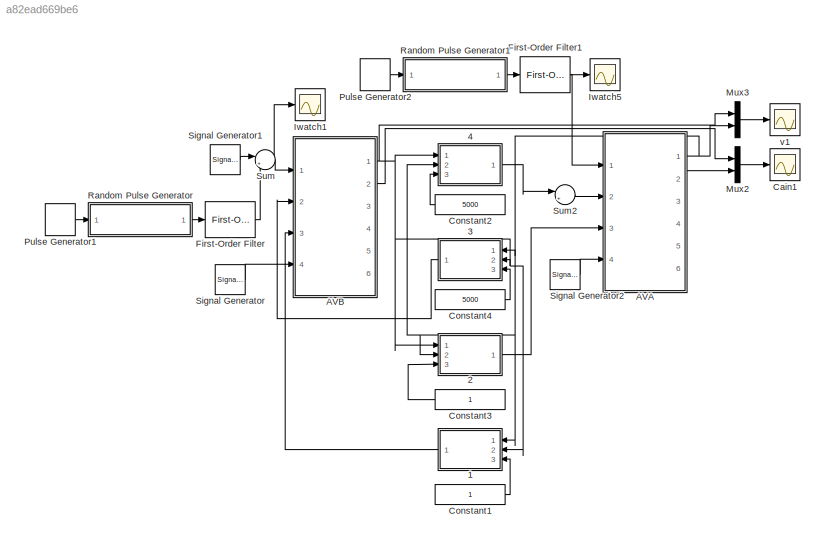
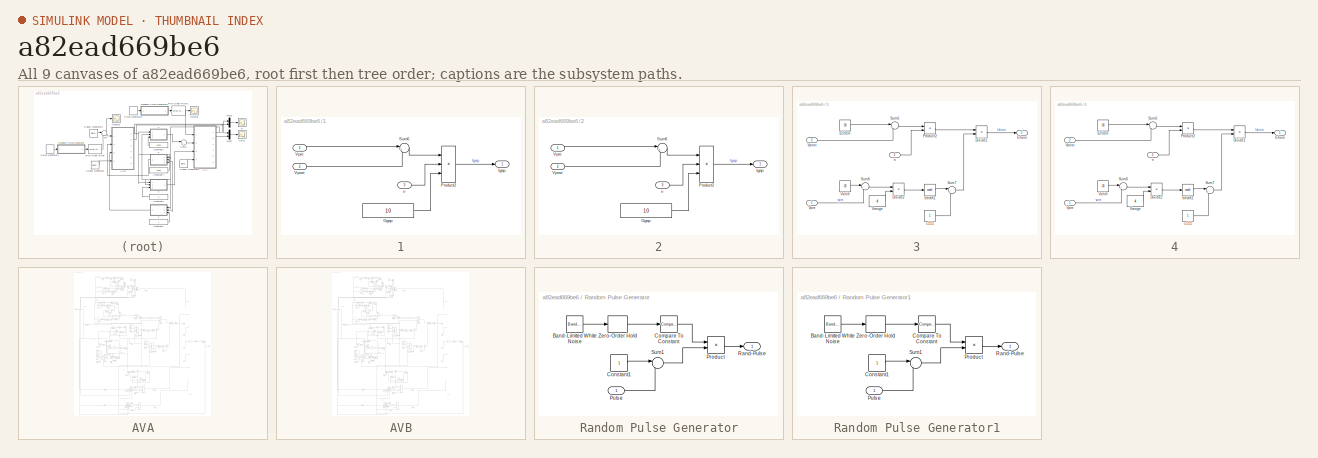
[diagram: thumbnail index - all 9 canvases of the model, root first then tree order]
MODEL slx_a82ead669be6
KIND model
CONFIG AbsTol = auto
CONFIG FixedStep = auto
CONFIG MaxStep = auto
CONFIG MinStep = auto
CONFIG RelTol = 1e-3
CONFIG SampleTimeConstraint = Unconstrained
CONFIG Solver = VariableStepAuto
CONFIG SolverMode = Auto
CONFIG SolverName = VariableStepAuto
CONFIG StartTime = 0.0
CONFIG StopTime = 500
BLOCK [SubSystem] 1
  Ports = [3, 1]
  RequestExecContextInheritance = off
  Variant = off
BLOCK [Constant] 1/Ggap
  Value = 10
BLOCK [Outport] 1/Igap
  IconDisplay = Port number
BLOCK [Product] 1/Product2
  InputSameDT = off
  Inputs = 3
  OutDataTypeStr = Inherit: Inherit via internal rule
  Ports = [3, 1]
  RndMeth = Floor
  SaturateOnIntegerOverflow = off
BLOCK [Sum] 1/Sum6
  IconShape = round
  InputSameDT = off
  Inputs = |+-
  OutDataTypeStr = Inherit: Inherit via internal rule
  Ports = [2, 1]
  SaturateOnIntegerOverflow = off
BLOCK [Inport] 1/Vpost
  IconDisplay = Port number
  Port = 2
BLOCK [Inport] 1/Vpre
  IconDisplay = Port number
BLOCK [Inport] 1/n
  IconDisplay = Port number
  Port = 3
BLOCK [SubSystem] 2
  Ports = [3, 1]
  RequestExecContextInheritance = off
  Variant = off
BLOCK [Constant] 2/Ggap
  Value = 10
BLOCK [Outport] 2/Igap
  IconDisplay = Port number
BLOCK [Product] 2/Product2
  InputSameDT = off
  Inputs = 3
  OutDataTypeStr = Inherit: Inherit via internal rule
  Ports = [3, 1]
  RndMeth = Floor
  SaturateOnIntegerOverflow = off
BLOCK [Sum] 2/Sum6
  IconShape = round
  InputSameDT = off
  Inputs = |+-
  OutDataTypeStr = Inherit: Inherit via internal rule
  Ports = [2, 1]
  SaturateOnIntegerOverflow = off
BLOCK [Inport] 2/Vpost
  IconDisplay = Port number
  Port = 2
BLOCK [Inport] 2/Vpre
  IconDisplay = Port number
BLOCK [Inport] 2/n
  IconDisplay = Port number
  Port = 3
BLOCK [SubSystem] 3
  Ports = [3, 1]
  RequestExecContextInheritance = off
  Variant = off
BLOCK [Product] 3/Divide1
  InputSameDT = off
  Inputs = */
  OutDataTypeStr = Inherit: Inherit via internal rule
  Ports = [2, 1]
  RndMeth = Floor
  SaturateOnIntegerOverflow = off
BLOCK [Product] 3/Divide2
  InputSameDT = off
  Inputs = */
  OutDataTypeStr = Inherit: Inherit via internal rule
  Ports = [2, 1]
  RndMeth = Floor
  SaturateOnIntegerOverflow = off
BLOCK [Constant] 3/Echem
  Value = -90
BLOCK [Outport] 3/Ichem
  IconDisplay = Port number
BLOCK [Product] 3/Product2
  InputSameDT = off
  OutDataTypeStr = Inherit: Inherit via internal rule
  Ports = [2, 1]
  RndMeth = Floor
  SaturateOnIntegerOverflow = off
BLOCK [Sum] 3/Sum6
  IconShape = round
  InputSameDT = off
  Inputs = |+-
  OutDataTypeStr = Inherit: Inherit via internal rule
  Ports = [2, 1]
  SaturateOnIntegerOverflow = off
BLOCK [Sum] 3/Sum7
  IconShape = round
  InputSameDT = off
  Inputs = |++
  OutDataTypeStr = Inherit: Inherit via internal rule
  Ports = [2, 1]
  SaturateOnIntegerOverflow = off
BLOCK [Sum] 3/Sum8
  IconShape = round
  InputSameDT = off
  Inputs = |+-
  OutDataTypeStr = Inherit: Inherit via internal rule
  Ports = [2, 1]
  SaturateOnIntegerOverflow = off
BLOCK [Inport] 3/Vpost
  IconDisplay = Port number
  Port = 2
BLOCK [Inport] 3/Vpre
  IconDisplay = Port number
BLOCK [Constant] 3/Vrange
  Value = 4
BLOCK [Constant] 3/Vshift
  Value = -30
BLOCK [Math] 3/betaK1
  Ports = [1, 1]
BLOCK [Constant] 3/c111
BLOCK [Inport] 3/n
  IconDisplay = Port number
  Port = 3
BLOCK [SubSystem] 4
  Ports = [3, 1]
  RequestExecContextInheritance = off
  Variant = off
BLOCK [Product] 4/Divide1
  InputSameDT = off
  Inputs = */
  OutDataTypeStr = Inherit: Inherit via internal rule
  Ports = [2, 1]
  RndMeth = Floor
  SaturateOnIntegerOverflow = off
BLOCK [Product] 4/Divide2
  InputSameDT = off
  Inputs = */
  OutDataTypeStr = Inherit: Inherit via internal rule
  Ports = [2, 1]
  RndMeth = Floor
  SaturateOnIntegerOverflow = off
BLOCK [Constant] 4/Echem
  Value = -90
BLOCK [Outport] 4/Ichem
  IconDisplay = Port number
BLOCK [Product] 4/Product2
  InputSameDT = off
  OutDataTypeStr = Inherit: Inherit via internal rule
  Ports = [2, 1]
  RndMeth = Floor
  SaturateOnIntegerOverflow = off
BLOCK [Sum] 4/Sum6
  IconShape = round
  InputSameDT = off
  Inputs = |+-
  OutDataTypeStr = Inherit: Inherit via internal rule
  Ports = [2, 1]
  SaturateOnIntegerOverflow = off
BLOCK [Sum] 4/Sum7
  IconShape = round
  InputSameDT = off
  Inputs = |++
  OutDataTypeStr = Inherit: Inherit via internal rule
  Ports = [2, 1]
  SaturateOnIntegerOverflow = off
BLOCK [Sum] 4/Sum8
  IconShape = round
  InputSameDT = off
  Inputs = |+-
  OutDataTypeStr = Inherit: Inherit via internal rule
  Ports = [2, 1]
  SaturateOnIntegerOverflow = off
BLOCK [Inport] 4/Vpost
  IconDisplay = Port number
  Port = 2
BLOCK [Inport] 4/Vpre
  IconDisplay = Port number
BLOCK [Constant] 4/Vrange
  Value = 4
BLOCK [Constant] 4/Vshift
  Value = -30
BLOCK [Math] 4/betaK1
  Ports = [1, 1]
BLOCK [Constant] 4/c111
BLOCK [Inport] 4/n
  IconDisplay = Port number
  Port = 3
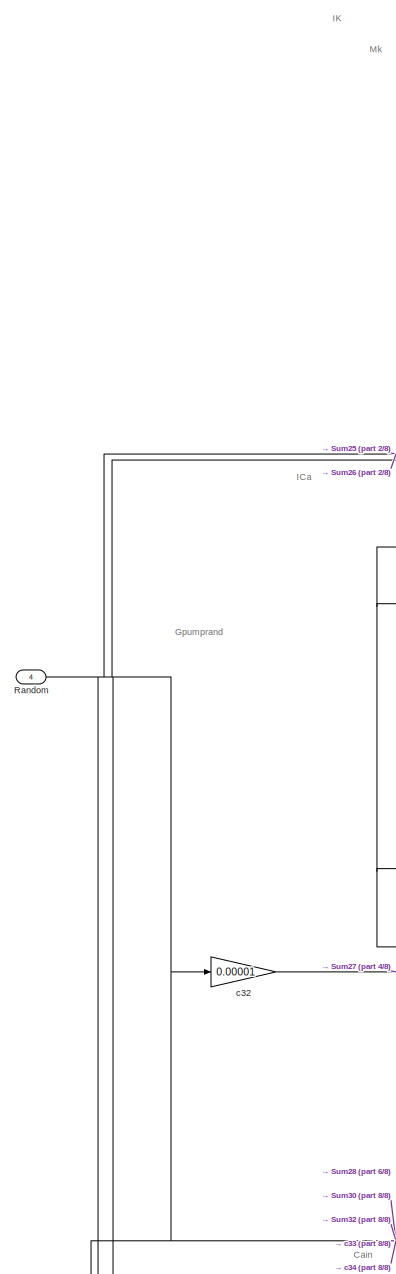
[diagram: AVA - part 1/8, top left region]
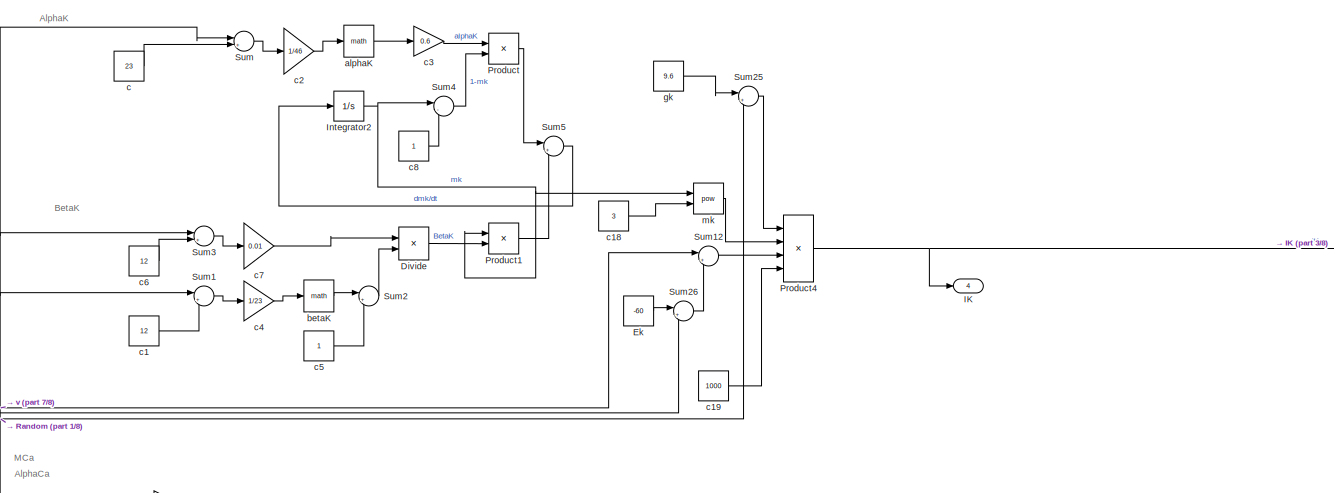
[diagram: AVA - part 2/8, top center region]
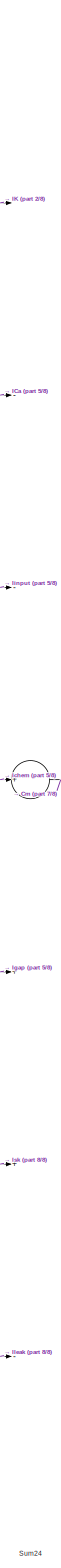
[diagram: AVA - part 3/8, right side, full height]
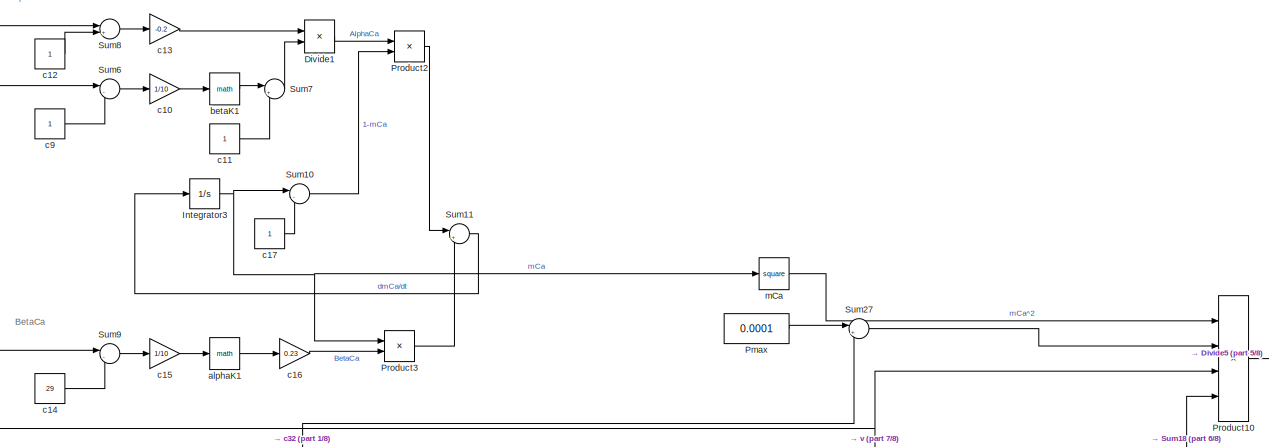
[diagram: AVA - part 4/8, top center region]
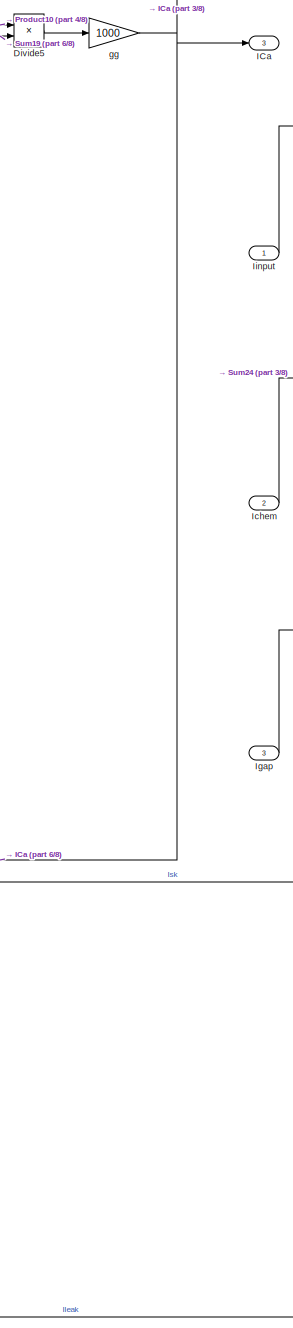
[diagram: AVA - part 5/8, middle right region]
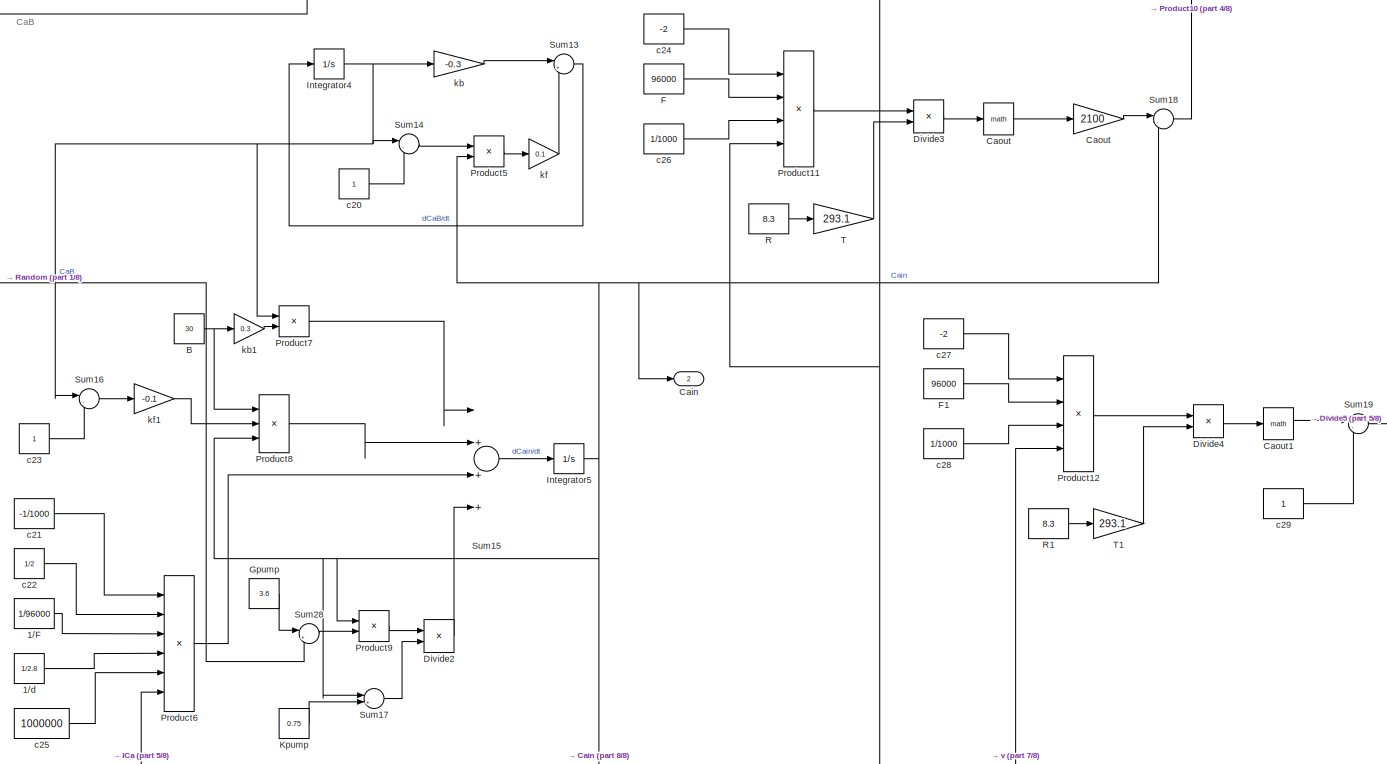
[diagram: AVA - part 6/8, central region]
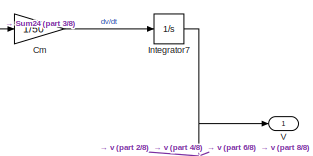
[diagram: AVA - part 7/8, middle right region]
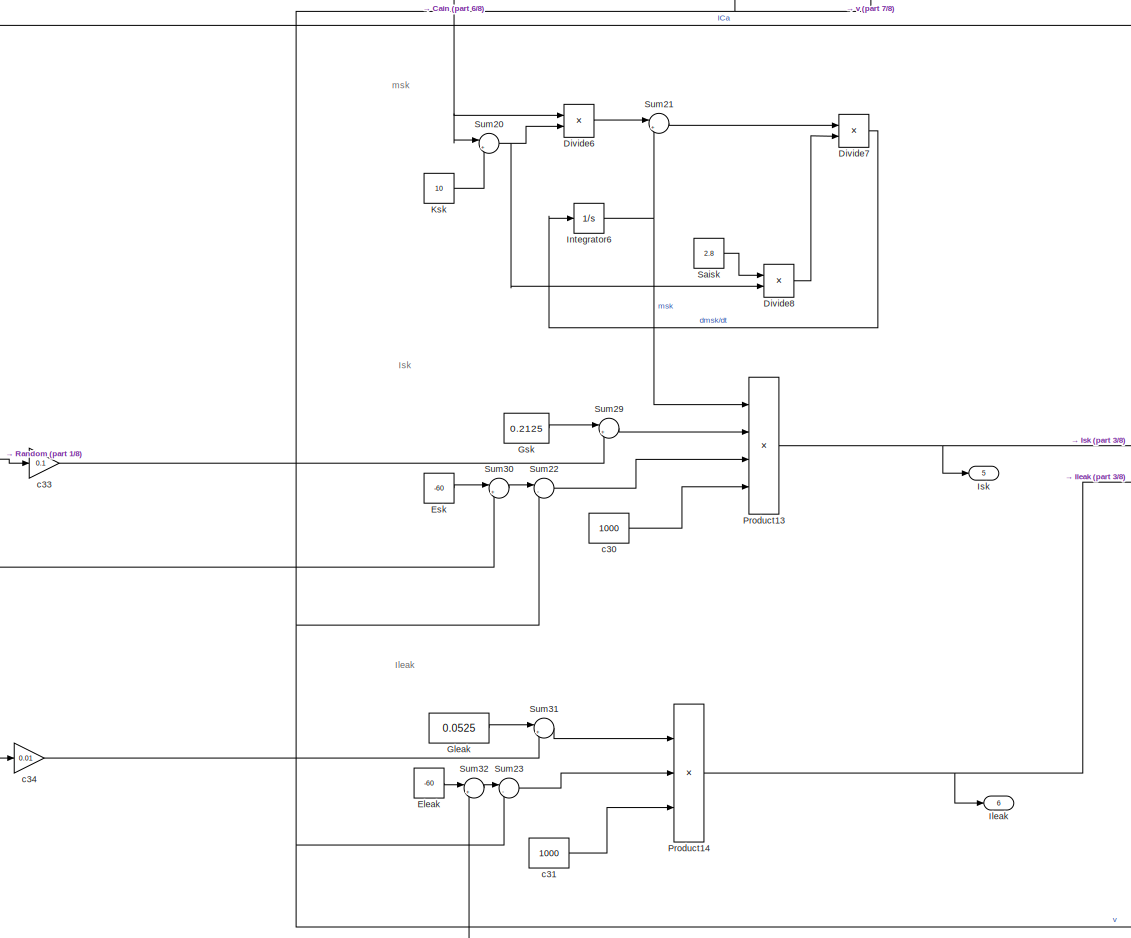
[diagram: AVA - part 8/8, bottom center region]
BLOCK [SubSystem] AVA
  Ports = [4, 6]
  RequestExecContextInheritance = off
  Variant = off
BLOCK [Constant] AVA/1//F
  Value = 1/96000
BLOCK [Constant] AVA/1//d
  Value = 1/2.8
BLOCK [Constant] AVA/B
  Value = 30
BLOCK [Outport] AVA/Cain 
  IconDisplay = Port number
  Port = 2
BLOCK [Math] AVA/Caout
  Ports = [1, 1]
BLOCK [Gain] AVA/Caout 
  Gain = 2100
  OutDataTypeStr = Inherit: Inherit via internal rule
  ParamDataTypeStr = Inherit: Inherit via internal rule
  SaturateOnIntegerOverflow = off
BLOCK [Math] AVA/Caout1
  Ports = [1, 1]
BLOCK [Gain] AVA/Cm 
  Gain = 1/50
  OutDataTypeStr = Inherit: Inherit via internal rule
  ParamDataTypeStr = Inherit: Inherit via internal rule
  SaturateOnIntegerOverflow = off
BLOCK [Product] AVA/Divide
  InputSameDT = off
  Inputs = */
  OutDataTypeStr = Inherit: Inherit via internal rule
  Ports = [2, 1]
  RndMeth = Floor
  SaturateOnIntegerOverflow = off
BLOCK [Product] AVA/Divide1
  InputSameDT = off
  Inputs = */
  OutDataTypeStr = Inherit: Inherit via internal rule
  Ports = [2, 1]
  RndMeth = Floor
  SaturateOnIntegerOverflow = off
BLOCK [Product] AVA/Divide2
  InputSameDT = off
  Inputs = */
  OutDataTypeStr = Inherit: Inherit via internal rule
  Ports = [2, 1]
  RndMeth = Floor
  SaturateOnIntegerOverflow = off
BLOCK [Product] AVA/Divide3
  InputSameDT = off
  Inputs = */
  OutDataTypeStr = Inherit: Inherit via internal rule
  Ports = [2, 1]
  RndMeth = Floor
  SaturateOnIntegerOverflow = off
BLOCK [Product] AVA/Divide4
  InputSameDT = off
  Inputs = */
  OutDataTypeStr = Inherit: Inherit via internal rule
  Ports = [2, 1]
  RndMeth = Floor
  SaturateOnIntegerOverflow = off
BLOCK [Product] AVA/Divide5
  InputSameDT = off
  Inputs = */
  OutDataTypeStr = Inherit: Inherit via internal rule
  Ports = [2, 1]
  RndMeth = Floor
  SaturateOnIntegerOverflow = off
BLOCK [Product] AVA/Divide6
  InputSameDT = off
  Inputs = */
  OutDataTypeStr = Inherit: Inherit via internal rule
  Ports = [2, 1]
  RndMeth = Floor
  SaturateOnIntegerOverflow = off
BLOCK [Product] AVA/Divide7
  InputSameDT = off
  Inputs = */
  OutDataTypeStr = Inherit: Inherit via internal rule
  Ports = [2, 1]
  RndMeth = Floor
  SaturateOnIntegerOverflow = off
BLOCK [Product] AVA/Divide8
  InputSameDT = off
  Inputs = */
  OutDataTypeStr = Inherit: Inherit via internal rule
  Ports = [2, 1]
  RndMeth = Floor
  SaturateOnIntegerOverflow = off
BLOCK [Constant] AVA/Ek 
  Value = -60
BLOCK [Constant] AVA/Eleak
  Value = -60
BLOCK [Constant] AVA/Esk
  Value = -60
BLOCK [Constant] AVA/F
  Value = 96000
BLOCK [Constant] AVA/F1
  Value = 96000
BLOCK [Constant] AVA/Gleak
  Value = 0.0525
BLOCK [Constant] AVA/Gpump
  Value = 3.6
BLOCK [Constant] AVA/Gsk
  Value = 0.2125
BLOCK [Outport] AVA/ICa
  IconDisplay = Port number
  Port = 3
BLOCK [Outport] AVA/IK
  IconDisplay = Port number
  Port = 4
BLOCK [Inport] AVA/Ichem
  IconDisplay = Port number
  Port = 2
BLOCK [Inport] AVA/Igap
  IconDisplay = Port number
  Port = 3
BLOCK [Inport] AVA/Iinput
  IconDisplay = Port number
BLOCK [Outport] AVA/Ileak
  IconDisplay = Port number
  Port = 6
BLOCK [Integrator] AVA/Integrator2
  Ports = [1, 1]
BLOCK [Integrator] AVA/Integrator3
  InitialCondition = 0.001
  Ports = [1, 1]
BLOCK [Integrator] AVA/Integrator4
  Ports = [1, 1]
BLOCK [Integrator] AVA/Integrator5
  Ports = [1, 1]
BLOCK [Integrator] AVA/Integrator6
  InitialCondition = 1
  Ports = [1, 1]
BLOCK [Integrator] AVA/Integrator7
  InitialCondition = -60
  Ports = [1, 1]
BLOCK [Outport] AVA/Isk
  IconDisplay = Port number
  Port = 5
BLOCK [Constant] AVA/Kpump
  Value = 0.75
BLOCK [Constant] AVA/Ksk
  Value = 10
BLOCK [Constant] AVA/Pmax
  Value = 0.0001
BLOCK [Product] AVA/Product
  InputSameDT = off
  OutDataTypeStr = Inherit: Inherit via internal rule
  Ports = [2, 1]
  RndMeth = Floor
  SaturateOnIntegerOverflow = off
BLOCK [Product] AVA/Product1
  InputSameDT = off
  OutDataTypeStr = Inherit: Inherit via internal rule
  Ports = [2, 1]
  RndMeth = Floor
  SaturateOnIntegerOverflow = off
BLOCK [Product] AVA/Product10
  InputSameDT = off
  Inputs = 4
  OutDataTypeStr = Inherit: Inherit via internal rule
  Ports = [4, 1]
  RndMeth = Floor
  SaturateOnIntegerOverflow = off
BLOCK [Product] AVA/Product11
  InputSameDT = off
  Inputs = 4
  OutDataTypeStr = Inherit: Inherit via internal rule
  Ports = [4, 1]
  RndMeth = Floor
  SaturateOnIntegerOverflow = off
BLOCK [Product] AVA/Product12
  InputSameDT = off
  Inputs = 4
  OutDataTypeStr = Inherit: Inherit via internal rule
  Ports = [4, 1]
  RndMeth = Floor
  SaturateOnIntegerOverflow = off
BLOCK [Product] AVA/Product13
  InputSameDT = off
  Inputs = 4
  OutDataTypeStr = Inherit: Inherit via internal rule
  Ports = [4, 1]
  RndMeth = Floor
  SaturateOnIntegerOverflow = off
BLOCK [Product] AVA/Product14
  InputSameDT = off
  Inputs = 3
  OutDataTypeStr = Inherit: Inherit via internal rule
  Ports = [3, 1]
  RndMeth = Floor
  SaturateOnIntegerOverflow = off
BLOCK [Product] AVA/Product2
  InputSameDT = off
  OutDataTypeStr = Inherit: Inherit via internal rule
  Ports = [2, 1]
  RndMeth = Floor
  SaturateOnIntegerOverflow = off
BLOCK [Product] AVA/Product3
  InputSameDT = off
  OutDataTypeStr = Inherit: Inherit via internal rule
  Ports = [2, 1]
  RndMeth = Floor
  SaturateOnIntegerOverflow = off
BLOCK [Product] AVA/Product4
  InputSameDT = off
  Inputs = 4
  OutDataTypeStr = Inherit: Inherit via internal rule
  Ports = [4, 1]
  RndMeth = Floor
  SaturateOnIntegerOverflow = off
BLOCK [Product] AVA/Product5
  InputSameDT = off
  OutDataTypeStr = Inherit: Inherit via internal rule
  Ports = [2, 1]
  RndMeth = Floor
  SaturateOnIntegerOverflow = off
BLOCK [Product] AVA/Product6
  InputSameDT = off
  Inputs = 6
  OutDataTypeStr = Inherit: Inherit via internal rule
  Ports = [6, 1]
  RndMeth = Floor
  SaturateOnIntegerOverflow = off
BLOCK [Product] AVA/Product7
  InputSameDT = off
  OutDataTypeStr = Inherit: Inherit via internal rule
  Ports = [2, 1]
  RndMeth = Floor
  SaturateOnIntegerOverflow = off
BLOCK [Product] AVA/Product8
  InputSameDT = off
  Inputs = 3
  OutDataTypeStr = Inherit: Inherit via internal rule
  Ports = [3, 1]
  RndMeth = Floor
  SaturateOnIntegerOverflow = off
BLOCK [Product] AVA/Product9
  InputSameDT = off
  OutDataTypeStr = Inherit: Inherit via internal rule
  Ports = [2, 1]
  RndMeth = Floor
  SaturateOnIntegerOverflow = off
BLOCK [Constant] AVA/R
  Value = 8.3
BLOCK [Constant] AVA/R1
  Value = 8.3
BLOCK [Inport] AVA/Random
  IconDisplay = Port number
  Port = 4
BLOCK [Constant] AVA/Saisk
  Value = 2.8
BLOCK [Sum] AVA/Sum
  IconShape = round
  InputSameDT = off
  Inputs = |+-
  OutDataTypeStr = Inherit: Inherit via internal rule
  Ports = [2, 1]
  SaturateOnIntegerOverflow = off
BLOCK [Sum] AVA/Sum1
  IconShape = round
  InputSameDT = off
  Inputs = |++
  OutDataTypeStr = Inherit: Inherit via internal rule
  Ports = [2, 1]
  SaturateOnIntegerOverflow = off
BLOCK [Sum] AVA/Sum10
  IconShape = round
  InputSameDT = off
  Inputs = |-+
  OutDataTypeStr = Inherit: Inherit via internal rule
  Ports = [2, 1]
  SaturateOnIntegerOverflow = off
BLOCK [Sum] AVA/Sum11
  IconShape = round
  InputSameDT = off
  Inputs = |+-
  OutDataTypeStr = Inherit: Inherit via internal rule
  Ports = [2, 1]
  SaturateOnIntegerOverflow = off
BLOCK [Sum] AVA/Sum12
  IconShape = round
  InputSameDT = off
  Inputs = |+-
  OutDataTypeStr = Inherit: Inherit via internal rule
  Ports = [2, 1]
  SaturateOnIntegerOverflow = off
BLOCK [Sum] AVA/Sum13
  IconShape = round
  InputSameDT = off
  Inputs = |++
  OutDataTypeStr = Inherit: Inherit via internal rule
  Ports = [2, 1]
  SaturateOnIntegerOverflow = off
BLOCK [Sum] AVA/Sum14
  IconShape = round
  InputSameDT = off
  Inputs = |-+
  OutDataTypeStr = Inherit: Inherit via internal rule
  Ports = [2, 1]
  SaturateOnIntegerOverflow = off
BLOCK [Sum] AVA/Sum15
  InputSameDT = off
  Inputs = |+++-
  OutDataTypeStr = Inherit: Inherit via internal rule
  Ports = [4, 1]
  SaturateOnIntegerOverflow = off
BLOCK [Sum] AVA/Sum16
  IconShape = round
  InputSameDT = off
  Inputs = |-+
  OutDataTypeStr = Inherit: Inherit via internal rule
  Ports = [2, 1]
  SaturateOnIntegerOverflow = off
BLOCK [Sum] AVA/Sum17
  IconShape = round
  InputSameDT = off
  Inputs = |++
  OutDataTypeStr = Inherit: Inherit via internal rule
  Ports = [2, 1]
  SaturateOnIntegerOverflow = off
BLOCK [Sum] AVA/Sum18
  IconShape = round
  InputSameDT = off
  Inputs = |-+
  OutDataTypeStr = Inherit: Inherit via internal rule
  Ports = [2, 1]
  SaturateOnIntegerOverflow = off
BLOCK [Sum] AVA/Sum19
  IconShape = round
  InputSameDT = off
  Inputs = |-+
  OutDataTypeStr = Inherit: Inherit via internal rule
  Ports = [2, 1]
  SaturateOnIntegerOverflow = off
BLOCK [Sum] AVA/Sum2
  IconShape = round
  InputSameDT = off
  Inputs = |+-
  OutDataTypeStr = Inherit: Inherit via internal rule
  Ports = [2, 1]
  SaturateOnIntegerOverflow = off
BLOCK [Sum] AVA/Sum20
  IconShape = round
  InputSameDT = off
  Inputs = |++
  OutDataTypeStr = Inherit: Inherit via internal rule
  Ports = [2, 1]
  SaturateOnIntegerOverflow = off
BLOCK [Sum] AVA/Sum21
  IconShape = round
  InputSameDT = off
  Inputs = |+-
  OutDataTypeStr = Inherit: Inherit via internal rule
  Ports = [2, 1]
  SaturateOnIntegerOverflow = off
BLOCK [Sum] AVA/Sum22
  IconShape = round
  InputSameDT = off
  Inputs = |-+
  OutDataTypeStr = Inherit: Inherit via internal rule
  Ports = [2, 1]
  SaturateOnIntegerOverflow = off
BLOCK [Sum] AVA/Sum23
  IconShape = round
  InputSameDT = off
  Inputs = |-+
  OutDataTypeStr = Inherit: Inherit via internal rule
  Ports = [2, 1]
  SaturateOnIntegerOverflow = off
BLOCK [Sum] AVA/Sum24
  InputSameDT = off
  Inputs = |--+++--
  OutDataTypeStr = Inherit: Inherit via internal rule
  Ports = [7, 1]
  SaturateOnIntegerOverflow = off
BLOCK [Sum] AVA/Sum25
  IconShape = round
  InputSameDT = off
  Inputs = |++
  OutDataTypeStr = Inherit: Inherit via internal rule
  Ports = [2, 1]
  SaturateOnIntegerOverflow = off
BLOCK [Sum] AVA/Sum26
  IconShape = round
  InputSameDT = off
  Inputs = |++
  OutDataTypeStr = Inherit: Inherit via internal rule
  Ports = [2, 1]
  SaturateOnIntegerOverflow = off
BLOCK [Sum] AVA/Sum27
  IconShape = round
  InputSameDT = off
  Inputs = |++
  OutDataTypeStr = Inherit: Inherit via internal rule
  Ports = [2, 1]
  SaturateOnIntegerOverflow = off
BLOCK [Sum] AVA/Sum28
  IconShape = round
  InputSameDT = off
  Inputs = |++
  OutDataTypeStr = Inherit: Inherit via internal rule
  Ports = [2, 1]
  SaturateOnIntegerOverflow = off
BLOCK [Sum] AVA/Sum29
  IconShape = round
  InputSameDT = off
  Inputs = |++
  OutDataTypeStr = Inherit: Inherit via internal rule
  Ports = [2, 1]
  SaturateOnIntegerOverflow = off
BLOCK [Sum] AVA/Sum3
  IconShape = round
  InputSameDT = off
  Inputs = |++
  OutDataTypeStr = Inherit: Inherit via internal rule
  Ports = [2, 1]
  SaturateOnIntegerOverflow = off
BLOCK [Sum] AVA/Sum30
  IconShape = round
  InputSameDT = off
  Inputs = |++
  OutDataTypeStr = Inherit: Inherit via internal rule
  Ports = [2, 1]
  SaturateOnIntegerOverflow = off
BLOCK [Sum] AVA/Sum31
  IconShape = round
  InputSameDT = off
  Inputs = |++
  OutDataTypeStr = Inherit: Inherit via internal rule
  Ports = [2, 1]
  SaturateOnIntegerOverflow = off
BLOCK [Sum] AVA/Sum32
  IconShape = round
  InputSameDT = off
  Inputs = |++
  OutDataTypeStr = Inherit: Inherit via internal rule
  Ports = [2, 1]
  SaturateOnIntegerOverflow = off
BLOCK [Sum] AVA/Sum4
  IconShape = round
  InputSameDT = off
  Inputs = |-+
  OutDataTypeStr = Inherit: Inherit via internal rule
  Ports = [2, 1]
  SaturateOnIntegerOverflow = off
BLOCK [Sum] AVA/Sum5
  IconShape = round
  InputSameDT = off
  Inputs = |+-
  OutDataTypeStr = Inherit: Inherit via internal rule
  Ports = [2, 1]
  SaturateOnIntegerOverflow = off
BLOCK [Sum] AVA/Sum6
  IconShape = round
  InputSameDT = off
  Inputs = |--
  OutDataTypeStr = Inherit: Inherit via internal rule
  Ports = [2, 1]
  SaturateOnIntegerOverflow = off
BLOCK [Sum] AVA/Sum7
  IconShape = round
  InputSameDT = off
  Inputs = |+-
  OutDataTypeStr = Inherit: Inherit via internal rule
  Ports = [2, 1]
  SaturateOnIntegerOverflow = off
BLOCK [Sum] AVA/Sum8
  IconShape = round
  InputSameDT = off
  Inputs = |++
  OutDataTypeStr = Inherit: Inherit via internal rule
  Ports = [2, 1]
  SaturateOnIntegerOverflow = off
BLOCK [Sum] AVA/Sum9
  IconShape = round
  InputSameDT = off
  Inputs = |--
  OutDataTypeStr = Inherit: Inherit via internal rule
  Ports = [2, 1]
  SaturateOnIntegerOverflow = off
BLOCK [Gain] AVA/T
  Gain = 293.1
  OutDataTypeStr = Inherit: Inherit via internal rule
  ParamDataTypeStr = Inherit: Inherit via internal rule
  SaturateOnIntegerOverflow = off
BLOCK [Gain] AVA/T1
  Gain = 293.1
  OutDataTypeStr = Inherit: Inherit via internal rule
  ParamDataTypeStr = Inherit: Inherit via internal rule
  SaturateOnIntegerOverflow = off
BLOCK [Outport] AVA/V
  IconDisplay = Port number
BLOCK [Math] AVA/alphaK
  Ports = [1, 1]
BLOCK [Math] AVA/alphaK1
  Ports = [1, 1]
BLOCK [Math] AVA/betaK
  Ports = [1, 1]
BLOCK [Math] AVA/betaK1
  Ports = [1, 1]
BLOCK [Constant] AVA/c
  Value = 23
BLOCK [Constant] AVA/c1
  Value = 12
BLOCK [Gain] AVA/c10
  Gain = 1/10
  OutDataTypeStr = Inherit: Inherit via internal rule
  ParamDataTypeStr = Inherit: Inherit via internal rule
  SaturateOnIntegerOverflow = off
BLOCK [Constant] AVA/c11
BLOCK [Constant] AVA/c12
BLOCK [Gain] AVA/c13
  Gain = -0.2
  OutDataTypeStr = Inherit: Inherit via internal rule
  ParamDataTypeStr = Inherit: Inherit via internal rule
  SaturateOnIntegerOverflow = off
BLOCK [Constant] AVA/c14
  Value = 29
BLOCK [Gain] AVA/c15
  Gain = 1/10
  OutDataTypeStr = Inherit: Inherit via internal rule
  ParamDataTypeStr = Inherit: Inherit via internal rule
  SaturateOnIntegerOverflow = off
BLOCK [Gain] AVA/c16
  Gain = 0.23
  OutDataTypeStr = Inherit: Inherit via internal rule
  ParamDataTypeStr = Inherit: Inherit via internal rule
  SaturateOnIntegerOverflow = off
BLOCK [Constant] AVA/c17
BLOCK [Constant] AVA/c18
  Value = 3
BLOCK [Constant] AVA/c19
  Value = 1000
BLOCK [Gain] AVA/c2
  Gain = 1/46
  OutDataTypeStr = Inherit: Inherit via internal rule
  ParamDataTypeStr = Inherit: Inherit via internal rule
  SaturateOnIntegerOverflow = off
BLOCK [Constant] AVA/c20
BLOCK [Constant] AVA/c21
  Value = -1/1000
BLOCK [Constant] AVA/c22
  Value = 1/2
BLOCK [Constant] AVA/c23
BLOCK [Constant] AVA/c24
  Value = -2
BLOCK [Constant] AVA/c25
  Value = 1000000
BLOCK [Constant] AVA/c26
  Value = 1/1000
BLOCK [Constant] AVA/c27
  Value = -2
BLOCK [Constant] AVA/c28
  Value = 1/1000
BLOCK [Constant] AVA/c29
BLOCK [Gain] AVA/c3
  Gain = 0.6
  OutDataTypeStr = Inherit: Inherit via internal rule
  ParamDataTypeStr = Inherit: Inherit via internal rule
  SaturateOnIntegerOverflow = off
BLOCK [Constant] AVA/c30
  Value = 1000
BLOCK [Constant] AVA/c31
  Value = 1000
BLOCK [Gain] AVA/c32
  Gain = 0.00001
  OutDataTypeStr = Inherit: Inherit via internal rule
  ParamDataTypeStr = Inherit: Inherit via internal rule
  SaturateOnIntegerOverflow = off
BLOCK [Gain] AVA/c33
  Gain = 0.1
  OutDataTypeStr = Inherit: Inherit via internal rule
  ParamDataTypeStr = Inherit: Inherit via internal rule
  SaturateOnIntegerOverflow = off
BLOCK [Gain] AVA/c34
  Gain = 0.01
  OutDataTypeStr = Inherit: Inherit via internal rule
  ParamDataTypeStr = Inherit: Inherit via internal rule
  SaturateOnIntegerOverflow = off
BLOCK [Gain] AVA/c4
  Gain = 1/23
  OutDataTypeStr = Inherit: Inherit via internal rule
  ParamDataTypeStr = Inherit: Inherit via internal rule
  SaturateOnIntegerOverflow = off
BLOCK [Constant] AVA/c5
BLOCK [Constant] AVA/c6
  Value = 12
BLOCK [Gain] AVA/c7
  Gain = 0.01
  OutDataTypeStr = Inherit: Inherit via internal rule
  ParamDataTypeStr = Inherit: Inherit via internal rule
  SaturateOnIntegerOverflow = off
BLOCK [Constant] AVA/c8
BLOCK [Constant] AVA/c9
BLOCK [Gain] AVA/gg 
  Gain = 1000
  OutDataTypeStr = Inherit: Inherit via internal rule
  ParamDataTypeStr = Inherit: Inherit via internal rule
  SaturateOnIntegerOverflow = off
BLOCK [Constant] AVA/gk
  Value = 9.6
BLOCK [Gain] AVA/kb
  Gain = -0.3
  OutDataTypeStr = Inherit: Inherit via internal rule
  ParamDataTypeStr = Inherit: Inherit via internal rule
  SaturateOnIntegerOverflow = off
BLOCK [Gain] AVA/kb1
  Gain = 0.3
  OutDataTypeStr = Inherit: Inherit via internal rule
  ParamDataTypeStr = Inherit: Inherit via internal rule
  SaturateOnIntegerOverflow = off
BLOCK [Gain] AVA/kf
  Gain = 0.1
  OutDataTypeStr = Inherit: Inherit via internal rule
  ParamDataTypeStr = Inherit: Inherit via internal rule
  SaturateOnIntegerOverflow = off
BLOCK [Gain] AVA/kf1
  Gain = -0.1
  OutDataTypeStr = Inherit: Inherit via internal rule
  ParamDataTypeStr = Inherit: Inherit via internal rule
  SaturateOnIntegerOverflow = off
BLOCK [Math] AVA/mCa
  Operator = square
  Ports = [1, 1]
BLOCK [Math] AVA/mk
  Operator = pow
  Ports = [2, 1]
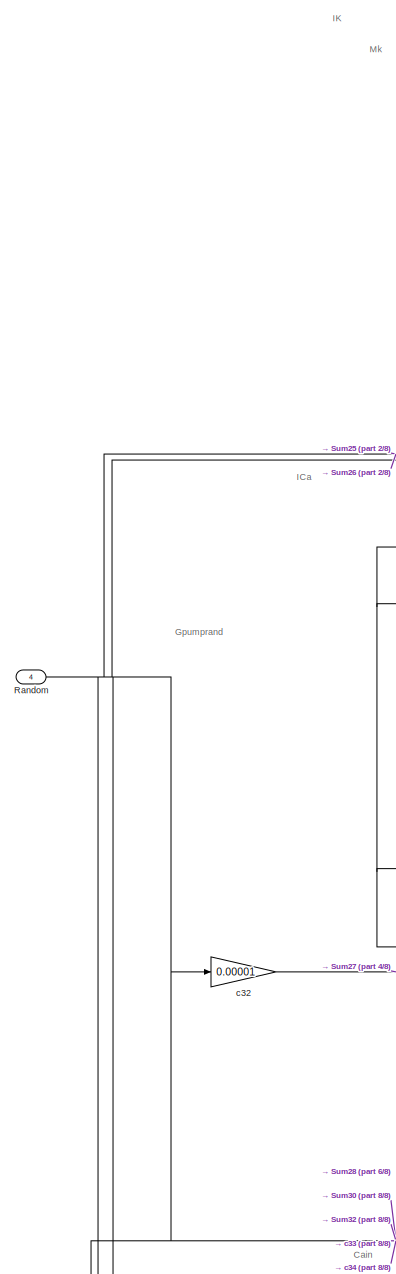
[diagram: AVB - part 1/8, top left region]
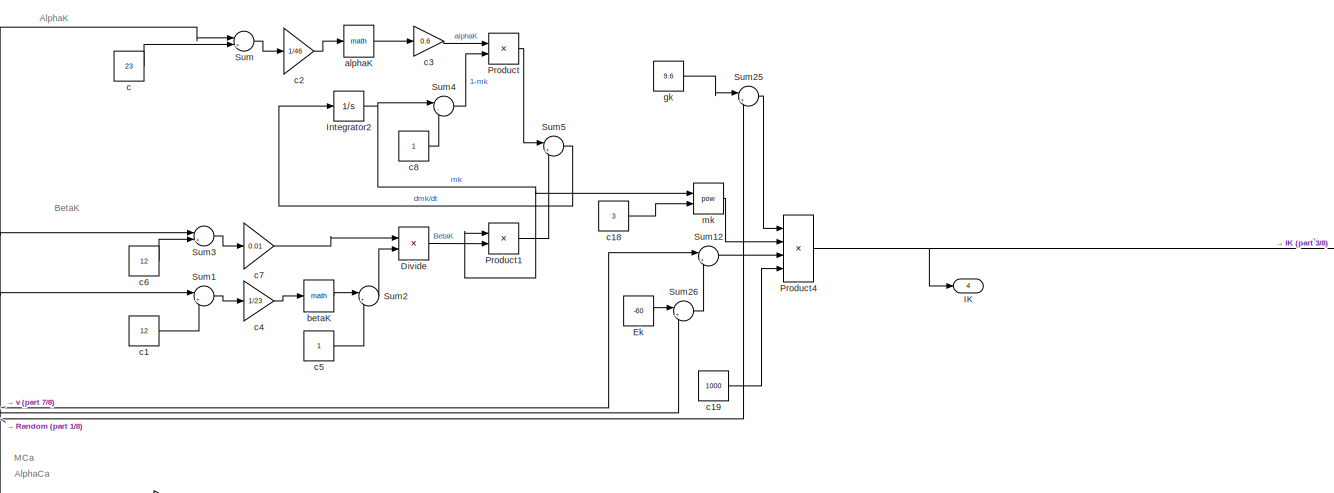
[diagram: AVB - part 2/8, top center region]
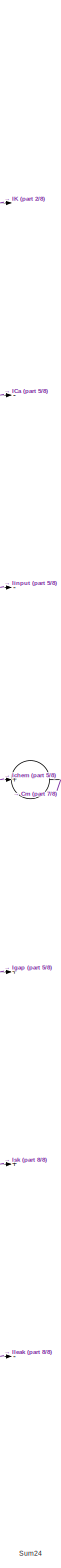
[diagram: AVB - part 3/8, right side, full height]
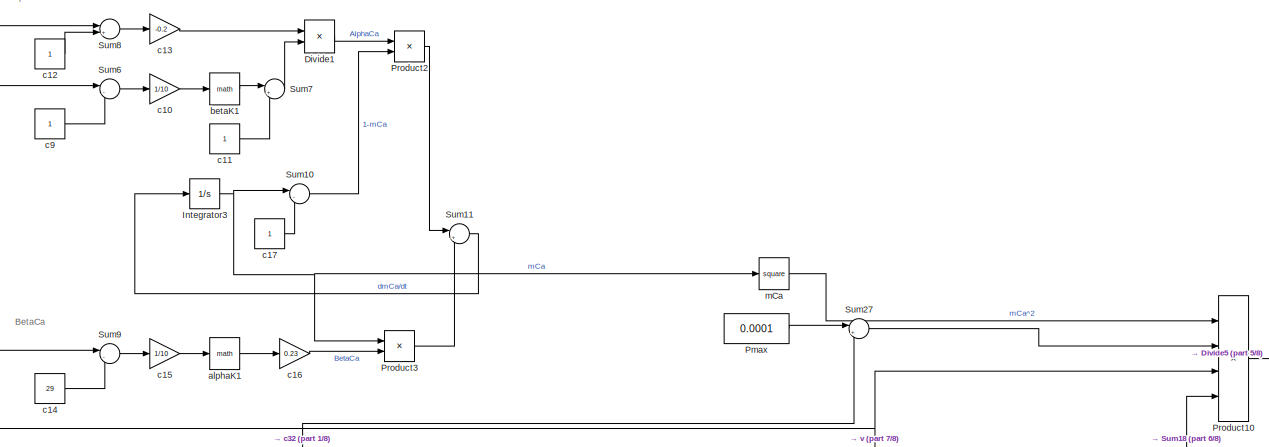
[diagram: AVB - part 4/8, top center region]
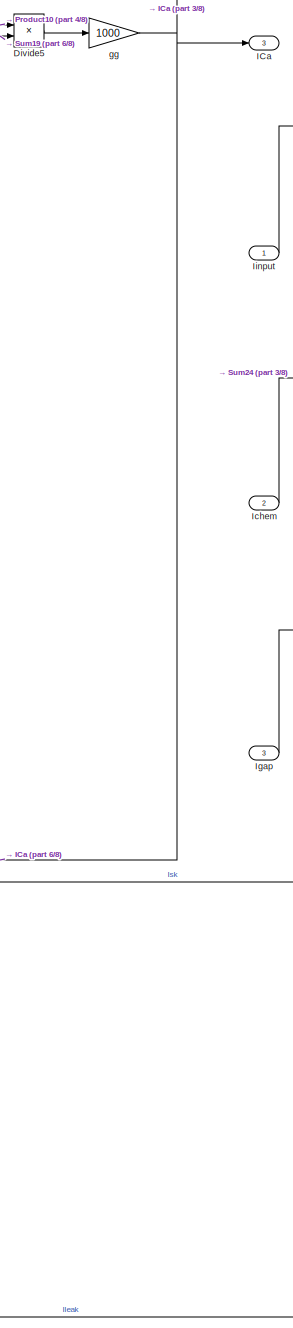
[diagram: AVB - part 5/8, middle right region]
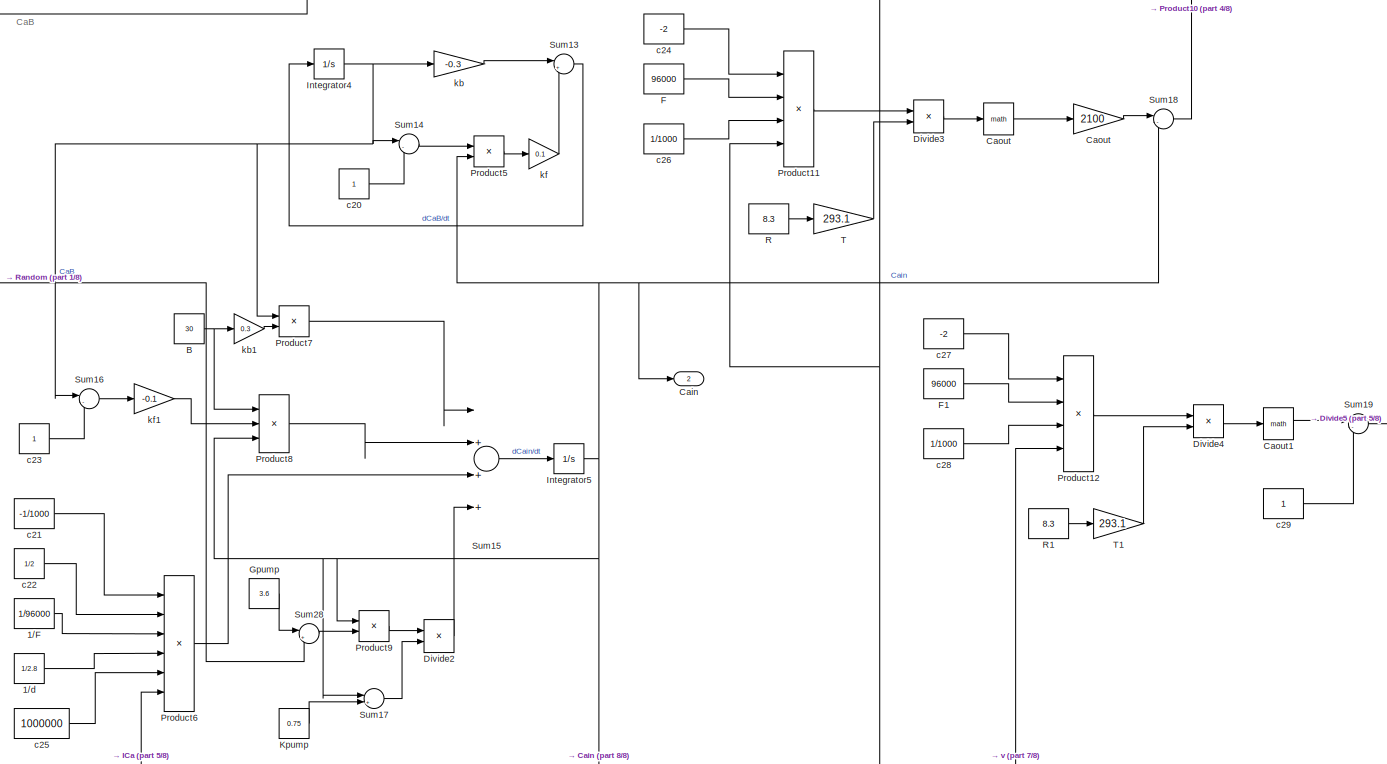
[diagram: AVB - part 6/8, central region]
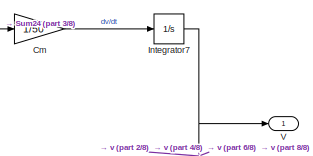
[diagram: AVB - part 7/8, middle right region]
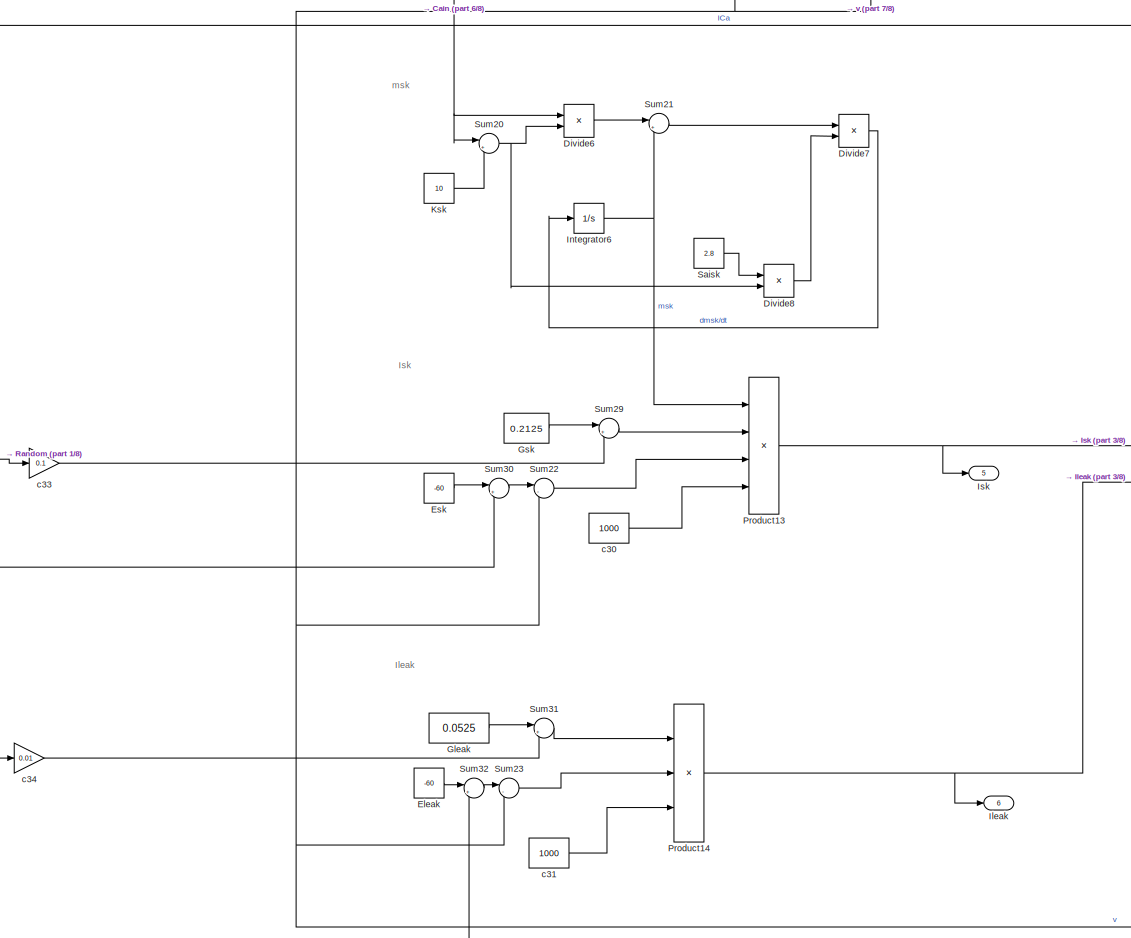
[diagram: AVB - part 8/8, bottom center region]
BLOCK [SubSystem] AVB
  Ports = [4, 6]
  RequestExecContextInheritance = off
  Variant = off
BLOCK [Constant] AVB/1//F
  Value = 1/96000
BLOCK [Constant] AVB/1//d
  Value = 1/2.8
BLOCK [Constant] AVB/B
  Value = 30
BLOCK [Outport] AVB/Cain 
  IconDisplay = Port number
  Port = 2
BLOCK [Math] AVB/Caout
  Ports = [1, 1]
BLOCK [Gain] AVB/Caout 
  Gain = 2100
  OutDataTypeStr = Inherit: Inherit via internal rule
  ParamDataTypeStr = Inherit: Inherit via internal rule
  SaturateOnIntegerOverflow = off
BLOCK [Math] AVB/Caout1
  Ports = [1, 1]
BLOCK [Gain] AVB/Cm 
  Gain = 1/50
  OutDataTypeStr = Inherit: Inherit via internal rule
  ParamDataTypeStr = Inherit: Inherit via internal rule
  SaturateOnIntegerOverflow = off
BLOCK [Product] AVB/Divide
  InputSameDT = off
  Inputs = */
  OutDataTypeStr = Inherit: Inherit via internal rule
  Ports = [2, 1]
  RndMeth = Floor
  SaturateOnIntegerOverflow = off
BLOCK [Product] AVB/Divide1
  InputSameDT = off
  Inputs = */
  OutDataTypeStr = Inherit: Inherit via internal rule
  Ports = [2, 1]
  RndMeth = Floor
  SaturateOnIntegerOverflow = off
BLOCK [Product] AVB/Divide2
  InputSameDT = off
  Inputs = */
  OutDataTypeStr = Inherit: Inherit via internal rule
  Ports = [2, 1]
  RndMeth = Floor
  SaturateOnIntegerOverflow = off
BLOCK [Product] AVB/Divide3
  InputSameDT = off
  Inputs = */
  OutDataTypeStr = Inherit: Inherit via internal rule
  Ports = [2, 1]
  RndMeth = Floor
  SaturateOnIntegerOverflow = off
BLOCK [Product] AVB/Divide4
  InputSameDT = off
  Inputs = */
  OutDataTypeStr = Inherit: Inherit via internal rule
  Ports = [2, 1]
  RndMeth = Floor
  SaturateOnIntegerOverflow = off
BLOCK [Product] AVB/Divide5
  InputSameDT = off
  Inputs = */
  OutDataTypeStr = Inherit: Inherit via internal rule
  Ports = [2, 1]
  RndMeth = Floor
  SaturateOnIntegerOverflow = off
BLOCK [Product] AVB/Divide6
  InputSameDT = off
  Inputs = */
  OutDataTypeStr = Inherit: Inherit via internal rule
  Ports = [2, 1]
  RndMeth = Floor
  SaturateOnIntegerOverflow = off
BLOCK [Product] AVB/Divide7
  InputSameDT = off
  Inputs = */
  OutDataTypeStr = Inherit: Inherit via internal rule
  Ports = [2, 1]
  RndMeth = Floor
  SaturateOnIntegerOverflow = off
BLOCK [Product] AVB/Divide8
  InputSameDT = off
  Inputs = */
  OutDataTypeStr = Inherit: Inherit via internal rule
  Ports = [2, 1]
  RndMeth = Floor
  SaturateOnIntegerOverflow = off
BLOCK [Constant] AVB/Ek 
  Value = -60
BLOCK [Constant] AVB/Eleak
  Value = -60
BLOCK [Constant] AVB/Esk
  Value = -60
BLOCK [Constant] AVB/F
  Value = 96000
BLOCK [Constant] AVB/F1
  Value = 96000
BLOCK [Constant] AVB/Gleak
  Value = 0.0525
BLOCK [Constant] AVB/Gpump
  Value = 3.6
BLOCK [Constant] AVB/Gsk
  Value = 0.2125
BLOCK [Outport] AVB/ICa
  IconDisplay = Port number
  Port = 3
BLOCK [Outport] AVB/IK
  IconDisplay = Port number
  Port = 4
BLOCK [Inport] AVB/Ichem
  IconDisplay = Port number
  Port = 2
BLOCK [Inport] AVB/Igap
  IconDisplay = Port number
  Port = 3
BLOCK [Inport] AVB/Iinput
  IconDisplay = Port number
BLOCK [Outport] AVB/Ileak
  IconDisplay = Port number
  Port = 6
BLOCK [Integrator] AVB/Integrator2
  Ports = [1, 1]
BLOCK [Integrator] AVB/Integrator3
  InitialCondition = 0.001
  Ports = [1, 1]
BLOCK [Integrator] AVB/Integrator4
  Ports = [1, 1]
BLOCK [Integrator] AVB/Integrator5
  Ports = [1, 1]
BLOCK [Integrator] AVB/Integrator6
  InitialCondition = 1
  Ports = [1, 1]
BLOCK [Integrator] AVB/Integrator7
  InitialCondition = -60
  Ports = [1, 1]
BLOCK [Outport] AVB/Isk
  IconDisplay = Port number
  Port = 5
BLOCK [Constant] AVB/Kpump
  Value = 0.75
BLOCK [Constant] AVB/Ksk
  Value = 10
BLOCK [Constant] AVB/Pmax
  Value = 0.0001
BLOCK [Product] AVB/Product
  InputSameDT = off
  OutDataTypeStr = Inherit: Inherit via internal rule
  Ports = [2, 1]
  RndMeth = Floor
  SaturateOnIntegerOverflow = off
BLOCK [Product] AVB/Product1
  InputSameDT = off
  OutDataTypeStr = Inherit: Inherit via internal rule
  Ports = [2, 1]
  RndMeth = Floor
  SaturateOnIntegerOverflow = off
BLOCK [Product] AVB/Product10
  InputSameDT = off
  Inputs = 4
  OutDataTypeStr = Inherit: Inherit via internal rule
  Ports = [4, 1]
  RndMeth = Floor
  SaturateOnIntegerOverflow = off
BLOCK [Product] AVB/Product11
  InputSameDT = off
  Inputs = 4
  OutDataTypeStr = Inherit: Inherit via internal rule
  Ports = [4, 1]
  RndMeth = Floor
  SaturateOnIntegerOverflow = off
BLOCK [Product] AVB/Product12
  InputSameDT = off
  Inputs = 4
  OutDataTypeStr = Inherit: Inherit via internal rule
  Ports = [4, 1]
  RndMeth = Floor
  SaturateOnIntegerOverflow = off
BLOCK [Product] AVB/Product13
  InputSameDT = off
  Inputs = 4
  OutDataTypeStr = Inherit: Inherit via internal rule
  Ports = [4, 1]
  RndMeth = Floor
  SaturateOnIntegerOverflow = off
BLOCK [Product] AVB/Product14
  InputSameDT = off
  Inputs = 3
  OutDataTypeStr = Inherit: Inherit via internal rule
  Ports = [3, 1]
  RndMeth = Floor
  SaturateOnIntegerOverflow = off
BLOCK [Product] AVB/Product2
  InputSameDT = off
  OutDataTypeStr = Inherit: Inherit via internal rule
  Ports = [2, 1]
  RndMeth = Floor
  SaturateOnIntegerOverflow = off
BLOCK [Product] AVB/Product3
  InputSameDT = off
  OutDataTypeStr = Inherit: Inherit via internal rule
  Ports = [2, 1]
  RndMeth = Floor
  SaturateOnIntegerOverflow = off
BLOCK [Product] AVB/Product4
  InputSameDT = off
  Inputs = 4
  OutDataTypeStr = Inherit: Inherit via internal rule
  Ports = [4, 1]
  RndMeth = Floor
  SaturateOnIntegerOverflow = off
BLOCK [Product] AVB/Product5
  InputSameDT = off
  OutDataTypeStr = Inherit: Inherit via internal rule
  Ports = [2, 1]
  RndMeth = Floor
  SaturateOnIntegerOverflow = off
BLOCK [Product] AVB/Product6
  InputSameDT = off
  Inputs = 6
  OutDataTypeStr = Inherit: Inherit via internal rule
  Ports = [6, 1]
  RndMeth = Floor
  SaturateOnIntegerOverflow = off
BLOCK [Product] AVB/Product7
  InputSameDT = off
  OutDataTypeStr = Inherit: Inherit via internal rule
  Ports = [2, 1]
  RndMeth = Floor
  SaturateOnIntegerOverflow = off
BLOCK [Product] AVB/Product8
  InputSameDT = off
  Inputs = 3
  OutDataTypeStr = Inherit: Inherit via internal rule
  Ports = [3, 1]
  RndMeth = Floor
  SaturateOnIntegerOverflow = off
BLOCK [Product] AVB/Product9
  InputSameDT = off
  OutDataTypeStr = Inherit: Inherit via internal rule
  Ports = [2, 1]
  RndMeth = Floor
  SaturateOnIntegerOverflow = off
BLOCK [Constant] AVB/R
  Value = 8.3
BLOCK [Constant] AVB/R1
  Value = 8.3
BLOCK [Inport] AVB/Random
  IconDisplay = Port number
  Port = 4
BLOCK [Constant] AVB/Saisk
  Value = 2.8
BLOCK [Sum] AVB/Sum
  IconShape = round
  InputSameDT = off
  Inputs = |+-
  OutDataTypeStr = Inherit: Inherit via internal rule
  Ports = [2, 1]
  SaturateOnIntegerOverflow = off
BLOCK [Sum] AVB/Sum1
  IconShape = round
  InputSameDT = off
  Inputs = |++
  OutDataTypeStr = Inherit: Inherit via internal rule
  Ports = [2, 1]
  SaturateOnIntegerOverflow = off
BLOCK [Sum] AVB/Sum10
  IconShape = round
  InputSameDT = off
  Inputs = |-+
  OutDataTypeStr = Inherit: Inherit via internal rule
  Ports = [2, 1]
  SaturateOnIntegerOverflow = off
BLOCK [Sum] AVB/Sum11
  IconShape = round
  InputSameDT = off
  Inputs = |+-
  OutDataTypeStr = Inherit: Inherit via internal rule
  Ports = [2, 1]
  SaturateOnIntegerOverflow = off
BLOCK [Sum] AVB/Sum12
  IconShape = round
  InputSameDT = off
  Inputs = |+-
  OutDataTypeStr = Inherit: Inherit via internal rule
  Ports = [2, 1]
  SaturateOnIntegerOverflow = off
BLOCK [Sum] AVB/Sum13
  IconShape = round
  InputSameDT = off
  Inputs = |++
  OutDataTypeStr = Inherit: Inherit via internal rule
  Ports = [2, 1]
  SaturateOnIntegerOverflow = off
BLOCK [Sum] AVB/Sum14
  IconShape = round
  InputSameDT = off
  Inputs = |-+
  OutDataTypeStr = Inherit: Inherit via internal rule
  Ports = [2, 1]
  SaturateOnIntegerOverflow = off
BLOCK [Sum] AVB/Sum15
  InputSameDT = off
  Inputs = |+++-
  OutDataTypeStr = Inherit: Inherit via internal rule
  Ports = [4, 1]
  SaturateOnIntegerOverflow = off
BLOCK [Sum] AVB/Sum16
  IconShape = round
  InputSameDT = off
  Inputs = |-+
  OutDataTypeStr = Inherit: Inherit via internal rule
  Ports = [2, 1]
  SaturateOnIntegerOverflow = off
BLOCK [Sum] AVB/Sum17
  IconShape = round
  InputSameDT = off
  Inputs = |++
  OutDataTypeStr = Inherit: Inherit via internal rule
  Ports = [2, 1]
  SaturateOnIntegerOverflow = off
BLOCK [Sum] AVB/Sum18
  IconShape = round
  InputSameDT = off
  Inputs = |-+
  OutDataTypeStr = Inherit: Inherit via internal rule
  Ports = [2, 1]
  SaturateOnIntegerOverflow = off
BLOCK [Sum] AVB/Sum19
  IconShape = round
  InputSameDT = off
  Inputs = |-+
  OutDataTypeStr = Inherit: Inherit via internal rule
  Ports = [2, 1]
  SaturateOnIntegerOverflow = off
BLOCK [Sum] AVB/Sum2
  IconShape = round
  InputSameDT = off
  Inputs = |+-
  OutDataTypeStr = Inherit: Inherit via internal rule
  Ports = [2, 1]
  SaturateOnIntegerOverflow = off
BLOCK [Sum] AVB/Sum20
  IconShape = round
  InputSameDT = off
  Inputs = |++
  OutDataTypeStr = Inherit: Inherit via internal rule
  Ports = [2, 1]
  SaturateOnIntegerOverflow = off
BLOCK [Sum] AVB/Sum21
  IconShape = round
  InputSameDT = off
  Inputs = |+-
  OutDataTypeStr = Inherit: Inherit via internal rule
  Ports = [2, 1]
  SaturateOnIntegerOverflow = off
BLOCK [Sum] AVB/Sum22
  IconShape = round
  InputSameDT = off
  Inputs = |-+
  OutDataTypeStr = Inherit: Inherit via internal rule
  Ports = [2, 1]
  SaturateOnIntegerOverflow = off
BLOCK [Sum] AVB/Sum23
  IconShape = round
  InputSameDT = off
  Inputs = |-+
  OutDataTypeStr = Inherit: Inherit via internal rule
  Ports = [2, 1]
  SaturateOnIntegerOverflow = off
BLOCK [Sum] AVB/Sum24
  InputSameDT = off
  Inputs = |--+++--
  OutDataTypeStr = Inherit: Inherit via internal rule
  Ports = [7, 1]
  SaturateOnIntegerOverflow = off
BLOCK [Sum] AVB/Sum25
  IconShape = round
  InputSameDT = off
  Inputs = |++
  OutDataTypeStr = Inherit: Inherit via internal rule
  Ports = [2, 1]
  SaturateOnIntegerOverflow = off
BLOCK [Sum] AVB/Sum26
  IconShape = round
  InputSameDT = off
  Inputs = |++
  OutDataTypeStr = Inherit: Inherit via internal rule
  Ports = [2, 1]
  SaturateOnIntegerOverflow = off
BLOCK [Sum] AVB/Sum27
  IconShape = round
  InputSameDT = off
  Inputs = |++
  OutDataTypeStr = Inherit: Inherit via internal rule
  Ports = [2, 1]
  SaturateOnIntegerOverflow = off
BLOCK [Sum] AVB/Sum28
  IconShape = round
  InputSameDT = off
  Inputs = |++
  OutDataTypeStr = Inherit: Inherit via internal rule
  Ports = [2, 1]
  SaturateOnIntegerOverflow = off
BLOCK [Sum] AVB/Sum29
  IconShape = round
  InputSameDT = off
  Inputs = |++
  OutDataTypeStr = Inherit: Inherit via internal rule
  Ports = [2, 1]
  SaturateOnIntegerOverflow = off
BLOCK [Sum] AVB/Sum3
  IconShape = round
  InputSameDT = off
  Inputs = |++
  OutDataTypeStr = Inherit: Inherit via internal rule
  Ports = [2, 1]
  SaturateOnIntegerOverflow = off
BLOCK [Sum] AVB/Sum30
  IconShape = round
  InputSameDT = off
  Inputs = |++
  OutDataTypeStr = Inherit: Inherit via internal rule
  Ports = [2, 1]
  SaturateOnIntegerOverflow = off
BLOCK [Sum] AVB/Sum31
  IconShape = round
  InputSameDT = off
  Inputs = |++
  OutDataTypeStr = Inherit: Inherit via internal rule
  Ports = [2, 1]
  SaturateOnIntegerOverflow = off
BLOCK [Sum] AVB/Sum32
  IconShape = round
  InputSameDT = off
  Inputs = |++
  OutDataTypeStr = Inherit: Inherit via internal rule
  Ports = [2, 1]
  SaturateOnIntegerOverflow = off
BLOCK [Sum] AVB/Sum4
  IconShape = round
  InputSameDT = off
  Inputs = |-+
  OutDataTypeStr = Inherit: Inherit via internal rule
  Ports = [2, 1]
  SaturateOnIntegerOverflow = off
BLOCK [Sum] AVB/Sum5
  IconShape = round
  InputSameDT = off
  Inputs = |+-
  OutDataTypeStr = Inherit: Inherit via internal rule
  Ports = [2, 1]
  SaturateOnIntegerOverflow = off
BLOCK [Sum] AVB/Sum6
  IconShape = round
  InputSameDT = off
  Inputs = |--
  OutDataTypeStr = Inherit: Inherit via internal rule
  Ports = [2, 1]
  SaturateOnIntegerOverflow = off
BLOCK [Sum] AVB/Sum7
  IconShape = round
  InputSameDT = off
  Inputs = |+-
  OutDataTypeStr = Inherit: Inherit via internal rule
  Ports = [2, 1]
  SaturateOnIntegerOverflow = off
BLOCK [Sum] AVB/Sum8
  IconShape = round
  InputSameDT = off
  Inputs = |++
  OutDataTypeStr = Inherit: Inherit via internal rule
  Ports = [2, 1]
  SaturateOnIntegerOverflow = off
BLOCK [Sum] AVB/Sum9
  IconShape = round
  InputSameDT = off
  Inputs = |--
  OutDataTypeStr = Inherit: Inherit via internal rule
  Ports = [2, 1]
  SaturateOnIntegerOverflow = off
BLOCK [Gain] AVB/T
  Gain = 293.1
  OutDataTypeStr = Inherit: Inherit via internal rule
  ParamDataTypeStr = Inherit: Inherit via internal rule
  SaturateOnIntegerOverflow = off
BLOCK [Gain] AVB/T1
  Gain = 293.1
  OutDataTypeStr = Inherit: Inherit via internal rule
  ParamDataTypeStr = Inherit: Inherit via internal rule
  SaturateOnIntegerOverflow = off
BLOCK [Outport] AVB/V
  IconDisplay = Port number
BLOCK [Math] AVB/alphaK
  Ports = [1, 1]
BLOCK [Math] AVB/alphaK1
  Ports = [1, 1]
BLOCK [Math] AVB/betaK
  Ports = [1, 1]
BLOCK [Math] AVB/betaK1
  Ports = [1, 1]
BLOCK [Constant] AVB/c
  Value = 23
BLOCK [Constant] AVB/c1
  Value = 12
BLOCK [Gain] AVB/c10
  Gain = 1/10
  OutDataTypeStr = Inherit: Inherit via internal rule
  ParamDataTypeStr = Inherit: Inherit via internal rule
  SaturateOnIntegerOverflow = off
BLOCK [Constant] AVB/c11
BLOCK [Constant] AVB/c12
BLOCK [Gain] AVB/c13
  Gain = -0.2
  OutDataTypeStr = Inherit: Inherit via internal rule
  ParamDataTypeStr = Inherit: Inherit via internal rule
  SaturateOnIntegerOverflow = off
BLOCK [Constant] AVB/c14
  Value = 29
BLOCK [Gain] AVB/c15
  Gain = 1/10
  OutDataTypeStr = Inherit: Inherit via internal rule
  ParamDataTypeStr = Inherit: Inherit via internal rule
  SaturateOnIntegerOverflow = off
BLOCK [Gain] AVB/c16
  Gain = 0.23
  OutDataTypeStr = Inherit: Inherit via internal rule
  ParamDataTypeStr = Inherit: Inherit via internal rule
  SaturateOnIntegerOverflow = off
BLOCK [Constant] AVB/c17
BLOCK [Constant] AVB/c18
  Value = 3
BLOCK [Constant] AVB/c19
  Value = 1000
BLOCK [Gain] AVB/c2
  Gain = 1/46
  OutDataTypeStr = Inherit: Inherit via internal rule
  ParamDataTypeStr = Inherit: Inherit via internal rule
  SaturateOnIntegerOverflow = off
BLOCK [Constant] AVB/c20
BLOCK [Constant] AVB/c21
  Value = -1/1000
BLOCK [Constant] AVB/c22
  Value = 1/2
BLOCK [Constant] AVB/c23
BLOCK [Constant] AVB/c24
  Value = -2
BLOCK [Constant] AVB/c25
  Value = 1000000
BLOCK [Constant] AVB/c26
  Value = 1/1000
BLOCK [Constant] AVB/c27
  Value = -2
BLOCK [Constant] AVB/c28
  Value = 1/1000
BLOCK [Constant] AVB/c29
BLOCK [Gain] AVB/c3
  Gain = 0.6
  OutDataTypeStr = Inherit: Inherit via internal rule
  ParamDataTypeStr = Inherit: Inherit via internal rule
  SaturateOnIntegerOverflow = off
BLOCK [Constant] AVB/c30
  Value = 1000
BLOCK [Constant] AVB/c31
  Value = 1000
BLOCK [Gain] AVB/c32
  Gain = 0.00001
  OutDataTypeStr = Inherit: Inherit via internal rule
  ParamDataTypeStr = Inherit: Inherit via internal rule
  SaturateOnIntegerOverflow = off
BLOCK [Gain] AVB/c33
  Gain = 0.1
  OutDataTypeStr = Inherit: Inherit via internal rule
  ParamDataTypeStr = Inherit: Inherit via internal rule
  SaturateOnIntegerOverflow = off
BLOCK [Gain] AVB/c34
  Gain = 0.01
  OutDataTypeStr = Inherit: Inherit via internal rule
  ParamDataTypeStr = Inherit: Inherit via internal rule
  SaturateOnIntegerOverflow = off
BLOCK [Gain] AVB/c4
  Gain = 1/23
  OutDataTypeStr = Inherit: Inherit via internal rule
  ParamDataTypeStr = Inherit: Inherit via internal rule
  SaturateOnIntegerOverflow = off
BLOCK [Constant] AVB/c5
BLOCK [Constant] AVB/c6
  Value = 12
BLOCK [Gain] AVB/c7
  Gain = 0.01
  OutDataTypeStr = Inherit: Inherit via internal rule
  ParamDataTypeStr = Inherit: Inherit via internal rule
  SaturateOnIntegerOverflow = off
BLOCK [Constant] AVB/c8
BLOCK [Constant] AVB/c9
BLOCK [Gain] AVB/gg 
  Gain = 1000
  OutDataTypeStr = Inherit: Inherit via internal rule
  ParamDataTypeStr = Inherit: Inherit via internal rule
  SaturateOnIntegerOverflow = off
BLOCK [Constant] AVB/gk
  Value = 9.6
BLOCK [Gain] AVB/kb
  Gain = -0.3
  OutDataTypeStr = Inherit: Inherit via internal rule
  ParamDataTypeStr = Inherit: Inherit via internal rule
  SaturateOnIntegerOverflow = off
BLOCK [Gain] AVB/kb1
  Gain = 0.3
  OutDataTypeStr = Inherit: Inherit via internal rule
  ParamDataTypeStr = Inherit: Inherit via internal rule
  SaturateOnIntegerOverflow = off
BLOCK [Gain] AVB/kf
  Gain = 0.1
  OutDataTypeStr = Inherit: Inherit via internal rule
  ParamDataTypeStr = Inherit: Inherit via internal rule
  SaturateOnIntegerOverflow = off
BLOCK [Gain] AVB/kf1
  Gain = -0.1
  OutDataTypeStr = Inherit: Inherit via internal rule
  ParamDataTypeStr = Inherit: Inherit via internal rule
  SaturateOnIntegerOverflow = off
BLOCK [Math] AVB/mCa
  Operator = square
  Ports = [1, 1]
BLOCK [Math] AVB/mk
  Operator = pow
  Ports = [2, 1]
BLOCK [Scope] Cain1
  Ports = [1]
  ScopeSpecificationString = Simulink.scopes.TimeScopeBlockCfg('CurrentConfiguration', extmgr.ConfigurationSet(extmgr.Configuration('Core','General UI',true,'FigureColor',[1 1 1]),extmgr.Configuration('Core','Source UI',true),extmgr.Configuration('Sources','WiredSimulink',true,'DataLoggingVariableName','ScopeData4'),extmgr.Configuration('Visuals','Time Domain',true,'SerializedDisplays',{struct('MinYLimReal','-0.00643','MaxYLi...<+1649ch>
BLOCK [Constant] Constant1
BLOCK [Constant] Constant2
  Value = 5000
BLOCK [Constant] Constant3
BLOCK [Constant] Constant4
  Value = 5000
BLOCK [Reference] First-Order Filter  REF=powerlib_meascontrol/Filters/First-Order
Filter
  Ports = [1, 1]
  SourceBlock = powerlib_meascontrol/Filters/First-Order\nFilter
  SourceType = First-Order Filter
BLOCK [Reference] First-Order Filter1  REF=powerlib_meascontrol/Filters/First-Order
Filter
  Ports = [1, 1]
  SourceBlock = powerlib_meascontrol/Filters/First-Order\nFilter
  SourceType = First-Order Filter
BLOCK [Scope] Iwatch1
  Ports = [1]
  ScopeSpecificationString = Simulink.scopes.TimeScopeBlockCfg('CurrentConfiguration', extmgr.ConfigurationSet(extmgr.Configuration('Core','General UI',true),extmgr.Configuration('Core','Source UI',true),extmgr.Configuration('Sources','WiredSimulink',true,'DataLoggingVariableName','ScopeData3'),extmgr.Configuration('Visuals','Time Domain',true,'SerializedDisplays',{struct('MinYLimReal','-626.00000','MaxYLimReal','5624.00000',...<+1552ch>
BLOCK [Scope] Iwatch5
  Ports = [1]
  ScopeSpecificationString = Simulink.scopes.TimeScopeBlockCfg('CurrentConfiguration', extmgr.ConfigurationSet(extmgr.Configuration('Core','General UI',true),extmgr.Configuration('Core','Source UI',true),extmgr.Configuration('Sources','WiredSimulink',true,'DataLoggingVariableName','ScopeData1'),extmgr.Configuration('Visuals','Time Domain',true,'SerializedDisplays',{struct('MinYLimReal','-872.99521','MaxYLimReal','2874.20483',...<+1570ch>
BLOCK [Mux] Mux2
  DisplayOption = bar
  Inputs = 2
  Ports = [2, 1]
BLOCK [Mux] Mux3
  DisplayOption = bar
  Inputs = 2
  Ports = [2, 1]
BLOCK [DiscretePulseGenerator] Pulse Generator1
  Amplitude = 2000
  Period = 200
  PhaseDelay = 2
  Ports = [0, 1]
  PulseType = Time based
  PulseWidth = 80
BLOCK [DiscretePulseGenerator] Pulse Generator2
  Amplitude = 2000
  Period = 200
  PhaseDelay = 2
  Ports = [0, 1]
  PulseType = Time based
  PulseWidth = 80
BLOCK [SubSystem] Random Pulse Generator
  Ports = [1, 1]
  RequestExecContextInheritance = off
  Variant = off
BLOCK [Reference] Random Pulse Generator/Band-Limited White Noise  REF=simulink/Sources/Band-Limited
White Noise
  Ports = [0, 1]
  SourceBlock = simulink/Sources/Band-Limited\nWhite Noise
  SourceType = Band-Limited White Noise.
BLOCK [Reference] Random Pulse Generator/Compare To Constant  REF=simulink/Logic and Bit
Operations/Compare
To Constant
  Ports = [1, 1]
  SourceBlock = simulink/Logic and Bit\nOperations/Compare\nTo Constant
  SourceType = Compare To Constant
BLOCK [Constant] Random Pulse Generator/Constant1
BLOCK [Product] Random Pulse Generator/Product
  InputSameDT = off
  OutDataTypeStr = Inherit: Inherit via internal rule
  Ports = [2, 1]
  RndMeth = Floor
  SaturateOnIntegerOverflow = off
BLOCK [Inport] Random Pulse Generator/Pulse
  IconDisplay = Port number
BLOCK [Outport] Random Pulse Generator/Rand-Pulse
  IconDisplay = Port number
BLOCK [Sum] Random Pulse Generator/Sum1
  IconShape = round
  InputSameDT = off
  Inputs = |-+
  OutDataTypeStr = Inherit: Inherit via internal rule
  Ports = [2, 1]
  SaturateOnIntegerOverflow = off
BLOCK [ZeroOrderHold] Random Pulse Generator/Zero-Order Hold
  SampleTime = -1
BLOCK [SubSystem] Random Pulse Generator1
  Ports = [1, 1]
  RequestExecContextInheritance = off
  Variant = off
BLOCK [Reference] Random Pulse Generator1/Band-Limited White Noise  REF=simulink/Sources/Band-Limited
White Noise
  Ports = [0, 1]
  SourceBlock = simulink/Sources/Band-Limited\nWhite Noise
  SourceType = Band-Limited White Noise.
BLOCK [Reference] Random Pulse Generator1/Compare To Constant  REF=simulink/Logic and Bit
Operations/Compare
To Constant
  Ports = [1, 1]
  SourceBlock = simulink/Logic and Bit\nOperations/Compare\nTo Constant
  SourceType = Compare To Constant
BLOCK [Constant] Random Pulse Generator1/Constant1
BLOCK [Product] Random Pulse Generator1/Product
  InputSameDT = off
  OutDataTypeStr = Inherit: Inherit via internal rule
  Ports = [2, 1]
  RndMeth = Floor
  SaturateOnIntegerOverflow = off
BLOCK [Inport] Random Pulse Generator1/Pulse
  IconDisplay = Port number
BLOCK [Outport] Random Pulse Generator1/Rand-Pulse
  IconDisplay = Port number
BLOCK [Sum] Random Pulse Generator1/Sum1
  IconShape = round
  InputSameDT = off
  Inputs = |-+
  OutDataTypeStr = Inherit: Inherit via internal rule
  Ports = [2, 1]
  SaturateOnIntegerOverflow = off
BLOCK [ZeroOrderHold] Random Pulse Generator1/Zero-Order Hold
  SampleTime = -1
BLOCK [SignalGenerator] Signal Generator
  Amplitude = 0.5
  Frequency = 100
  Ports = [0, 1]
  WaveForm = random
BLOCK [SignalGenerator] Signal Generator1
  Amplitude = 0
  Frequency = 100
  Ports = [0, 1]
  WaveForm = random
BLOCK [SignalGenerator] Signal Generator2
  Amplitude = 0.5
  Frequency = 100
  Ports = [0, 1]
  WaveForm = random
BLOCK [Sum] Sum
  IconShape = round
  InputSameDT = off
  Inputs = |++
  OutDataTypeStr = Inherit: Inherit via internal rule
  Ports = [2, 1]
  SaturateOnIntegerOverflow = off
BLOCK [Sum] Sum2
  IconShape = round
  InputSameDT = off
  Inputs = |++
  OutDataTypeStr = Inherit: Inherit via internal rule
  Ports = [2, 1]
  SaturateOnIntegerOverflow = off
BLOCK [Scope] v1
  Ports = [1]
  ScopeSpecificationString = Simulink.scopes.TimeScopeBlockCfg('CurrentConfiguration', extmgr.ConfigurationSet(extmgr.Configuration('Core','General UI',true,'FigureColor',[1 1 1]),extmgr.Configuration('Core','Source UI',true),extmgr.Configuration('Sources','WiredSimulink',true),extmgr.Configuration('Visuals','Time Domain',true,'SerializedDisplays',{struct('MinYLimReal','-63.28509','MaxYLimReal','-37.33473','YLabelReal','','Mi...<+1588ch>
ANNOTATION AVA: AlphaCa
ANNOTATION AVA: AlphaK
ANNOTATION AVA: BetaCa
ANNOTATION AVA: BetaK
ANNOTATION AVA: CaB
ANNOTATION AVA: Cain
ANNOTATION AVA: Gpumprand
ANNOTATION AVA: ICa
ANNOTATION AVA: IK
ANNOTATION AVA: Ileak
ANNOTATION AVA: Isk
ANNOTATION AVA: MCa
ANNOTATION AVA: Mk
ANNOTATION AVA: msk
ANNOTATION AVB: AlphaCa
ANNOTATION AVB: AlphaK
ANNOTATION AVB: BetaCa
ANNOTATION AVB: BetaK
ANNOTATION AVB: CaB
ANNOTATION AVB: Cain
ANNOTATION AVB: Gpumprand
ANNOTATION AVB: ICa
ANNOTATION AVB: IK
ANNOTATION AVB: Ileak
ANNOTATION AVB: Isk
ANNOTATION AVB: MCa
ANNOTATION AVB: Mk
ANNOTATION AVB: msk
LINE 1/Ggap:1 -> 1/Product2:3
LINE 1/Product2:1 -> 1/Igap:1
LINE 1/Sum6:1 -> 1/Product2:1
LINE 1/Vpost:1 -> 1/Sum6:2
LINE 1/Vpre:1 -> 1/Sum6:1
LINE 1/n:1 -> 1/Product2:2
LINE 1:1 -> AVB:3
LINE 2/Ggap:1 -> 2/Product2:3
LINE 2/Product2:1 -> 2/Igap:1
LINE 2/Sum6:1 -> 2/Product2:1
LINE 2/Vpost:1 -> 2/Sum6:2
LINE 2/Vpre:1 -> 2/Sum6:1
LINE 2/n:1 -> 2/Product2:2
LINE 2:1 -> AVA:3
LINE 3/Divide1:1 -> 3/Ichem:1
LINE 3/Divide2:1 -> 3/betaK1:1
LINE 3/Echem:1 -> 3/Sum6:1
LINE 3/Product2:1 -> 3/Divide1:1
LINE 3/Sum6:1 -> 3/Product2:1
LINE 3/Sum7:1 -> 3/Divide1:2
LINE 3/Sum8:1 -> 3/Divide2:1
LINE 3/Vpost:1 -> 3/Sum6:2
LINE 3/Vpre:1 -> 3/Sum8:2
LINE 3/Vrange:1 -> 3/Divide2:2
LINE 3/Vshift:1 -> 3/Sum8:1
LINE 3/betaK1:1 -> 3/Sum7:1
LINE 3/c111:1 -> 3/Sum7:2
LINE 3/n:1 -> 3/Product2:2
LINE 3:1 -> AVB:2
LINE 4/Divide1:1 -> 4/Ichem:1
LINE 4/Divide2:1 -> 4/betaK1:1
LINE 4/Echem:1 -> 4/Sum6:1
LINE 4/Product2:1 -> 4/Divide1:1
LINE 4/Sum6:1 -> 4/Product2:1
LINE 4/Sum7:1 -> 4/Divide1:2
LINE 4/Sum8:1 -> 4/Divide2:1
LINE 4/Vpost:1 -> 4/Sum6:2
LINE 4/Vpre:1 -> 4/Sum8:2
LINE 4/Vrange:1 -> 4/Divide2:2
LINE 4/Vshift:1 -> 4/Sum8:1
LINE 4/betaK1:1 -> 4/Sum7:1
LINE 4/c111:1 -> 4/Sum7:2
LINE 4/n:1 -> 4/Product2:2
LINE 4:1 -> Sum2:1
LINE AVA/1//F:1 -> AVA/Product6:3
LINE AVA/1//d:1 -> AVA/Product6:4
NET AVA/B:1 -> AVA/Product8:1, AVA/kb1:1
LINE AVA/Caout :1 -> AVA/Sum18:1
LINE AVA/Caout1:1 -> AVA/Sum19:1
LINE AVA/Caout:1 -> AVA/Caout :1
LINE AVA/Cm :1 -> AVA/Integrator7:1
LINE AVA/Divide1:1 -> AVA/Product2:1
LINE AVA/Divide2:1 -> AVA/Sum15:4
LINE AVA/Divide3:1 -> AVA/Caout:1
LINE AVA/Divide4:1 -> AVA/Caout1:1
LINE AVA/Divide5:1 -> AVA/gg :1
LINE AVA/Divide6:1 -> AVA/Sum21:1
LINE AVA/Divide7:1 -> AVA/Integrator6:1
LINE AVA/Divide8:1 -> AVA/Divide7:2
LINE AVA/Divide:1 -> AVA/Product1:2
LINE AVA/Ek :1 -> AVA/Sum26:1
LINE AVA/Eleak:1 -> AVA/Sum32:1
LINE AVA/Esk:1 -> AVA/Sum30:1
LINE AVA/F1:1 -> AVA/Product12:2
LINE AVA/F:1 -> AVA/Product11:2
LINE AVA/Gleak:1 -> AVA/Sum31:1
LINE AVA/Gpump:1 -> AVA/Sum28:1
LINE AVA/Gsk:1 -> AVA/Sum29:1
LINE AVA/Ichem:1 -> AVA/Sum24:4
LINE AVA/Igap:1 -> AVA/Sum24:5
LINE AVA/Iinput:1 -> AVA/Sum24:3
NET AVA/Integrator2:1 -> AVA/Product1:1, AVA/Sum4:1, AVA/mk:1
NET AVA/Integrator3:1 -> AVA/Product3:1, AVA/Sum10:1, AVA/mCa:1
NET AVA/Integrator4:1 -> AVA/Product7:1, AVA/Sum14:1, AVA/Sum16:1, AVA/kb:1
NET AVA/Integrator5:1 -> AVA/Cain :1, AVA/Divide6:1, AVA/Product5:2, AVA/Product8:3, AVA/Product9:1, AVA/Sum17:1, AVA/Sum18:2, AVA/Sum20:1
NET AVA/Integrator6:1 -> AVA/Product13:1, AVA/Sum21:2
NET AVA/Integrator7:1 -> AVA/Product10:3, AVA/Product11:4, AVA/Product12:4, AVA/Sum12:1, AVA/Sum1:1, AVA/Sum22:2, AVA/Sum23:2, AVA/Sum3:1, AVA/Sum6:1, AVA/Sum8:1, AVA/Sum9:1, AVA/Sum:1, AVA/V:1
LINE AVA/Kpump:1 -> AVA/Sum17:2
LINE AVA/Ksk:1 -> AVA/Sum20:2
LINE AVA/Pmax:1 -> AVA/Sum27:1
LINE AVA/Product10:1 -> AVA/Divide5:1
LINE AVA/Product11:1 -> AVA/Divide3:1
LINE AVA/Product12:1 -> AVA/Divide4:1
NET AVA/Product13:1 -> AVA/Isk:1, AVA/Sum24:6
NET AVA/Product14:1 -> AVA/Ileak:1, AVA/Sum24:7
LINE AVA/Product1:1 -> AVA/Sum5:2
LINE AVA/Product2:1 -> AVA/Sum11:1
LINE AVA/Product3:1 -> AVA/Sum11:2
NET AVA/Product4:1 -> AVA/IK:1, AVA/Sum24:1
LINE AVA/Product5:1 -> AVA/kf:1
LINE AVA/Product6:1 -> AVA/Sum15:3
LINE AVA/Product7:1 -> AVA/Sum15:1
LINE AVA/Product8:1 -> AVA/Sum15:2
LINE AVA/Product9:1 -> AVA/Divide2:1
LINE AVA/Product:1 -> AVA/Sum5:1
LINE AVA/R1:1 -> AVA/T1:1
LINE AVA/R:1 -> AVA/T:1
NET AVA/Random:1 -> AVA/Sum25:2, AVA/Sum26:2, AVA/Sum28:2, AVA/Sum30:2, AVA/Sum32:2, AVA/c32:1, AVA/c33:1, AVA/c34:1
LINE AVA/Saisk:1 -> AVA/Divide8:1
LINE AVA/Sum10:1 -> AVA/Product2:2
LINE AVA/Sum11:1 -> AVA/Integrator3:1
LINE AVA/Sum12:1 -> AVA/Product4:3
LINE AVA/Sum13:1 -> AVA/Integrator4:1
LINE AVA/Sum14:1 -> AVA/Product5:1
LINE AVA/Sum15:1 -> AVA/Integrator5:1
LINE AVA/Sum16:1 -> AVA/kf1:1
LINE AVA/Sum17:1 -> AVA/Divide2:2
LINE AVA/Sum18:1 -> AVA/Product10:4
LINE AVA/Sum19:1 -> AVA/Divide5:2
LINE AVA/Sum1:1 -> AVA/c4:1
NET AVA/Sum20:1 -> AVA/Divide6:2, AVA/Divide8:2
LINE AVA/Sum21:1 -> AVA/Divide7:1
LINE AVA/Sum22:1 -> AVA/Product13:3
LINE AVA/Sum23:1 -> AVA/Product14:2
LINE AVA/Sum24:1 -> AVA/Cm :1
LINE AVA/Sum25:1 -> AVA/Product4:1
LINE AVA/Sum26:1 -> AVA/Sum12:2
LINE AVA/Sum27:1 -> AVA/Product10:2
LINE AVA/Sum28:1 -> AVA/Product9:2
LINE AVA/Sum29:1 -> AVA/Product13:2
LINE AVA/Sum2:1 -> AVA/Divide:2
LINE AVA/Sum30:1 -> AVA/Sum22:1
LINE AVA/Sum31:1 -> AVA/Product14:1
LINE AVA/Sum32:1 -> AVA/Sum23:1
LINE AVA/Sum3:1 -> AVA/c7:1
LINE AVA/Sum4:1 -> AVA/Product:2
LINE AVA/Sum5:1 -> AVA/Integrator2:1
LINE AVA/Sum6:1 -> AVA/c10:1
LINE AVA/Sum7:1 -> AVA/Divide1:2
LINE AVA/Sum8:1 -> AVA/c13:1
LINE AVA/Sum9:1 -> AVA/c15:1
LINE AVA/Sum:1 -> AVA/c2:1
LINE AVA/T1:1 -> AVA/Divide4:2
LINE AVA/T:1 -> AVA/Divide3:2
LINE AVA/alphaK1:1 -> AVA/c16:1
LINE AVA/alphaK:1 -> AVA/c3:1
LINE AVA/betaK1:1 -> AVA/Sum7:1
LINE AVA/betaK:1 -> AVA/Sum2:1
LINE AVA/c10:1 -> AVA/betaK1:1
LINE AVA/c11:1 -> AVA/Sum7:2
LINE AVA/c12:1 -> AVA/Sum8:2
LINE AVA/c13:1 -> AVA/Divide1:1
LINE AVA/c14:1 -> AVA/Sum9:2
LINE AVA/c15:1 -> AVA/alphaK1:1
LINE AVA/c16:1 -> AVA/Product3:2
LINE AVA/c17:1 -> AVA/Sum10:2
LINE AVA/c18:1 -> AVA/mk:2
LINE AVA/c19:1 -> AVA/Product4:4
LINE AVA/c1:1 -> AVA/Sum1:2
LINE AVA/c20:1 -> AVA/Sum14:2
LINE AVA/c21:1 -> AVA/Product6:1
LINE AVA/c22:1 -> AVA/Product6:2
LINE AVA/c23:1 -> AVA/Sum16:2
LINE AVA/c24:1 -> AVA/Product11:1
LINE AVA/c25:1 -> AVA/Product6:5
LINE AVA/c26:1 -> AVA/Product11:3
LINE AVA/c27:1 -> AVA/Product12:1
LINE AVA/c28:1 -> AVA/Product12:3
LINE AVA/c29:1 -> AVA/Sum19:2
LINE AVA/c2:1 -> AVA/alphaK:1
LINE AVA/c30:1 -> AVA/Product13:4
LINE AVA/c31:1 -> AVA/Product14:3
LINE AVA/c32:1 -> AVA/Sum27:2
LINE AVA/c33:1 -> AVA/Sum29:2
LINE AVA/c34:1 -> AVA/Sum31:2
LINE AVA/c3:1 -> AVA/Product:1
LINE AVA/c4:1 -> AVA/betaK:1
LINE AVA/c5:1 -> AVA/Sum2:2
LINE AVA/c6:1 -> AVA/Sum3:2
LINE AVA/c7:1 -> AVA/Divide:1
LINE AVA/c8:1 -> AVA/Sum4:2
LINE AVA/c9:1 -> AVA/Sum6:2
LINE AVA/c:1 -> AVA/Sum:2
NET AVA/gg :1 -> AVA/ICa:1, AVA/Product6:6, AVA/Sum24:2
LINE AVA/gk:1 -> AVA/Sum25:1
LINE AVA/kb1:1 -> AVA/Product7:2
LINE AVA/kb:1 -> AVA/Sum13:1
LINE AVA/kf1:1 -> AVA/Product8:2
LINE AVA/kf:1 -> AVA/Sum13:2
LINE AVA/mCa:1 -> AVA/Product10:1
LINE AVA/mk:1 -> AVA/Product4:2
NET AVA:1 -> 1:1, 2:2, 3:1, 4:2, Mux3:2
LINE AVA:2 -> Mux2:2
LINE AVB/1//F:1 -> AVB/Product6:3
LINE AVB/1//d:1 -> AVB/Product6:4
NET AVB/B:1 -> AVB/Product8:1, AVB/kb1:1
LINE AVB/Caout :1 -> AVB/Sum18:1
LINE AVB/Caout1:1 -> AVB/Sum19:1
LINE AVB/Caout:1 -> AVB/Caout :1
LINE AVB/Cm :1 -> AVB/Integrator7:1
LINE AVB/Divide1:1 -> AVB/Product2:1
LINE AVB/Divide2:1 -> AVB/Sum15:4
LINE AVB/Divide3:1 -> AVB/Caout:1
LINE AVB/Divide4:1 -> AVB/Caout1:1
LINE AVB/Divide5:1 -> AVB/gg :1
LINE AVB/Divide6:1 -> AVB/Sum21:1
LINE AVB/Divide7:1 -> AVB/Integrator6:1
LINE AVB/Divide8:1 -> AVB/Divide7:2
LINE AVB/Divide:1 -> AVB/Product1:2
LINE AVB/Ek :1 -> AVB/Sum26:1
LINE AVB/Eleak:1 -> AVB/Sum32:1
LINE AVB/Esk:1 -> AVB/Sum30:1
LINE AVB/F1:1 -> AVB/Product12:2
LINE AVB/F:1 -> AVB/Product11:2
LINE AVB/Gleak:1 -> AVB/Sum31:1
LINE AVB/Gpump:1 -> AVB/Sum28:1
LINE AVB/Gsk:1 -> AVB/Sum29:1
LINE AVB/Ichem:1 -> AVB/Sum24:4
LINE AVB/Igap:1 -> AVB/Sum24:5
LINE AVB/Iinput:1 -> AVB/Sum24:3
NET AVB/Integrator2:1 -> AVB/Product1:1, AVB/Sum4:1, AVB/mk:1
NET AVB/Integrator3:1 -> AVB/Product3:1, AVB/Sum10:1, AVB/mCa:1
NET AVB/Integrator4:1 -> AVB/Product7:1, AVB/Sum14:1, AVB/Sum16:1, AVB/kb:1
NET AVB/Integrator5:1 -> AVB/Cain :1, AVB/Divide6:1, AVB/Product5:2, AVB/Product8:3, AVB/Product9:1, AVB/Sum17:1, AVB/Sum18:2, AVB/Sum20:1
NET AVB/Integrator6:1 -> AVB/Product13:1, AVB/Sum21:2
NET AVB/Integrator7:1 -> AVB/Product10:3, AVB/Product11:4, AVB/Product12:4, AVB/Sum12:1, AVB/Sum1:1, AVB/Sum22:2, AVB/Sum23:2, AVB/Sum3:1, AVB/Sum6:1, AVB/Sum8:1, AVB/Sum9:1, AVB/Sum:1, AVB/V:1
LINE AVB/Kpump:1 -> AVB/Sum17:2
LINE AVB/Ksk:1 -> AVB/Sum20:2
LINE AVB/Pmax:1 -> AVB/Sum27:1
LINE AVB/Product10:1 -> AVB/Divide5:1
LINE AVB/Product11:1 -> AVB/Divide3:1
LINE AVB/Product12:1 -> AVB/Divide4:1
NET AVB/Product13:1 -> AVB/Isk:1, AVB/Sum24:6
NET AVB/Product14:1 -> AVB/Ileak:1, AVB/Sum24:7
LINE AVB/Product1:1 -> AVB/Sum5:2
LINE AVB/Product2:1 -> AVB/Sum11:1
LINE AVB/Product3:1 -> AVB/Sum11:2
NET AVB/Product4:1 -> AVB/IK:1, AVB/Sum24:1
LINE AVB/Product5:1 -> AVB/kf:1
LINE AVB/Product6:1 -> AVB/Sum15:3
LINE AVB/Product7:1 -> AVB/Sum15:1
LINE AVB/Product8:1 -> AVB/Sum15:2
LINE AVB/Product9:1 -> AVB/Divide2:1
LINE AVB/Product:1 -> AVB/Sum5:1
LINE AVB/R1:1 -> AVB/T1:1
LINE AVB/R:1 -> AVB/T:1
NET AVB/Random:1 -> AVB/Sum25:2, AVB/Sum26:2, AVB/Sum28:2, AVB/Sum30:2, AVB/Sum32:2, AVB/c32:1, AVB/c33:1, AVB/c34:1
LINE AVB/Saisk:1 -> AVB/Divide8:1
LINE AVB/Sum10:1 -> AVB/Product2:2
LINE AVB/Sum11:1 -> AVB/Integrator3:1
LINE AVB/Sum12:1 -> AVB/Product4:3
LINE AVB/Sum13:1 -> AVB/Integrator4:1
LINE AVB/Sum14:1 -> AVB/Product5:1
LINE AVB/Sum15:1 -> AVB/Integrator5:1
LINE AVB/Sum16:1 -> AVB/kf1:1
LINE AVB/Sum17:1 -> AVB/Divide2:2
LINE AVB/Sum18:1 -> AVB/Product10:4
LINE AVB/Sum19:1 -> AVB/Divide5:2
LINE AVB/Sum1:1 -> AVB/c4:1
NET AVB/Sum20:1 -> AVB/Divide6:2, AVB/Divide8:2
LINE AVB/Sum21:1 -> AVB/Divide7:1
LINE AVB/Sum22:1 -> AVB/Product13:3
LINE AVB/Sum23:1 -> AVB/Product14:2
LINE AVB/Sum24:1 -> AVB/Cm :1
LINE AVB/Sum25:1 -> AVB/Product4:1
LINE AVB/Sum26:1 -> AVB/Sum12:2
LINE AVB/Sum27:1 -> AVB/Product10:2
LINE AVB/Sum28:1 -> AVB/Product9:2
LINE AVB/Sum29:1 -> AVB/Product13:2
LINE AVB/Sum2:1 -> AVB/Divide:2
LINE AVB/Sum30:1 -> AVB/Sum22:1
LINE AVB/Sum31:1 -> AVB/Product14:1
LINE AVB/Sum32:1 -> AVB/Sum23:1
LINE AVB/Sum3:1 -> AVB/c7:1
LINE AVB/Sum4:1 -> AVB/Product:2
LINE AVB/Sum5:1 -> AVB/Integrator2:1
LINE AVB/Sum6:1 -> AVB/c10:1
LINE AVB/Sum7:1 -> AVB/Divide1:2
LINE AVB/Sum8:1 -> AVB/c13:1
LINE AVB/Sum9:1 -> AVB/c15:1
LINE AVB/Sum:1 -> AVB/c2:1
LINE AVB/T1:1 -> AVB/Divide4:2
LINE AVB/T:1 -> AVB/Divide3:2
LINE AVB/alphaK1:1 -> AVB/c16:1
LINE AVB/alphaK:1 -> AVB/c3:1
LINE AVB/betaK1:1 -> AVB/Sum7:1
LINE AVB/betaK:1 -> AVB/Sum2:1
LINE AVB/c10:1 -> AVB/betaK1:1
LINE AVB/c11:1 -> AVB/Sum7:2
LINE AVB/c12:1 -> AVB/Sum8:2
LINE AVB/c13:1 -> AVB/Divide1:1
LINE AVB/c14:1 -> AVB/Sum9:2
LINE AVB/c15:1 -> AVB/alphaK1:1
LINE AVB/c16:1 -> AVB/Product3:2
LINE AVB/c17:1 -> AVB/Sum10:2
LINE AVB/c18:1 -> AVB/mk:2
LINE AVB/c19:1 -> AVB/Product4:4
LINE AVB/c1:1 -> AVB/Sum1:2
LINE AVB/c20:1 -> AVB/Sum14:2
LINE AVB/c21:1 -> AVB/Product6:1
LINE AVB/c22:1 -> AVB/Product6:2
LINE AVB/c23:1 -> AVB/Sum16:2
LINE AVB/c24:1 -> AVB/Product11:1
LINE AVB/c25:1 -> AVB/Product6:5
LINE AVB/c26:1 -> AVB/Product11:3
LINE AVB/c27:1 -> AVB/Product12:1
LINE AVB/c28:1 -> AVB/Product12:3
LINE AVB/c29:1 -> AVB/Sum19:2
LINE AVB/c2:1 -> AVB/alphaK:1
LINE AVB/c30:1 -> AVB/Product13:4
LINE AVB/c31:1 -> AVB/Product14:3
LINE AVB/c32:1 -> AVB/Sum27:2
LINE AVB/c33:1 -> AVB/Sum29:2
LINE AVB/c34:1 -> AVB/Sum31:2
LINE AVB/c3:1 -> AVB/Product:1
LINE AVB/c4:1 -> AVB/betaK:1
LINE AVB/c5:1 -> AVB/Sum2:2
LINE AVB/c6:1 -> AVB/Sum3:2
LINE AVB/c7:1 -> AVB/Divide:1
LINE AVB/c8:1 -> AVB/Sum4:2
LINE AVB/c9:1 -> AVB/Sum6:2
LINE AVB/c:1 -> AVB/Sum:2
NET AVB/gg :1 -> AVB/ICa:1, AVB/Product6:6, AVB/Sum24:2
LINE AVB/gk:1 -> AVB/Sum25:1
LINE AVB/kb1:1 -> AVB/Product7:2
LINE AVB/kb:1 -> AVB/Sum13:1
LINE AVB/kf1:1 -> AVB/Product8:2
LINE AVB/kf:1 -> AVB/Sum13:2
LINE AVB/mCa:1 -> AVB/Product10:1
LINE AVB/mk:1 -> AVB/Product4:2
NET AVB:1 -> 1:2, 2:1, 3:2, 4:1, Mux3:1
LINE AVB:2 -> Mux2:1
LINE Constant1:1 -> 1:3
LINE Constant2:1 -> 4:3
LINE Constant3:1 -> 2:3
LINE Constant4:1 -> 3:3
NET First-Order Filter1:1 -> AVA:1, Iwatch5:1
LINE First-Order Filter:1 -> Sum:2
LINE Mux2:1 -> Cain1:1
LINE Mux3:1 -> v1:1
LINE Pulse Generator1:1 -> Random Pulse Generator:1
LINE Pulse Generator2:1 -> Random Pulse Generator1:1
LINE Random Pulse Generator/Band-Limited White Noise:1 -> Random Pulse Generator/Zero-Order Hold:1
LINE Random Pulse Generator/Compare To Constant:1 -> Random Pulse Generator/Product:1
LINE Random Pulse Generator/Constant1:1 -> Random Pulse Generator/Sum1:1
LINE Random Pulse Generator/Product:1 -> Random Pulse Generator/Rand-Pulse:1
LINE Random Pulse Generator/Pulse:1 -> Random Pulse Generator/Sum1:2
LINE Random Pulse Generator/Sum1:1 -> Random Pulse Generator/Product:2
LINE Random Pulse Generator/Zero-Order Hold:1 -> Random Pulse Generator/Compare To Constant:1
LINE Random Pulse Generator1/Band-Limited White Noise:1 -> Random Pulse Generator1/Zero-Order Hold:1
LINE Random Pulse Generator1/Compare To Constant:1 -> Random Pulse Generator1/Product:1
LINE Random Pulse Generator1/Constant1:1 -> Random Pulse Generator1/Sum1:1
LINE Random Pulse Generator1/Product:1 -> Random Pulse Generator1/Rand-Pulse:1
LINE Random Pulse Generator1/Pulse:1 -> Random Pulse Generator1/Sum1:2
LINE Random Pulse Generator1/Sum1:1 -> Random Pulse Generator1/Product:2
LINE Random Pulse Generator1/Zero-Order Hold:1 -> Random Pulse Generator1/Compare To Constant:1
LINE Random Pulse Generator1:1 -> First-Order Filter1:1
LINE Random Pulse Generator:1 -> First-Order Filter:1
LINE Signal Generator1:1 -> Sum:1
LINE Signal Generator2:1 -> AVA:4
LINE Signal Generator:1 -> AVB:4
LINE Sum2:1 -> AVA:2
NET Sum:1 -> AVB:1, Iwatch1:1
note: NET lines group one-source signal fan-out (src -> all destinations, sorted); 1:1 wires keep LINE
